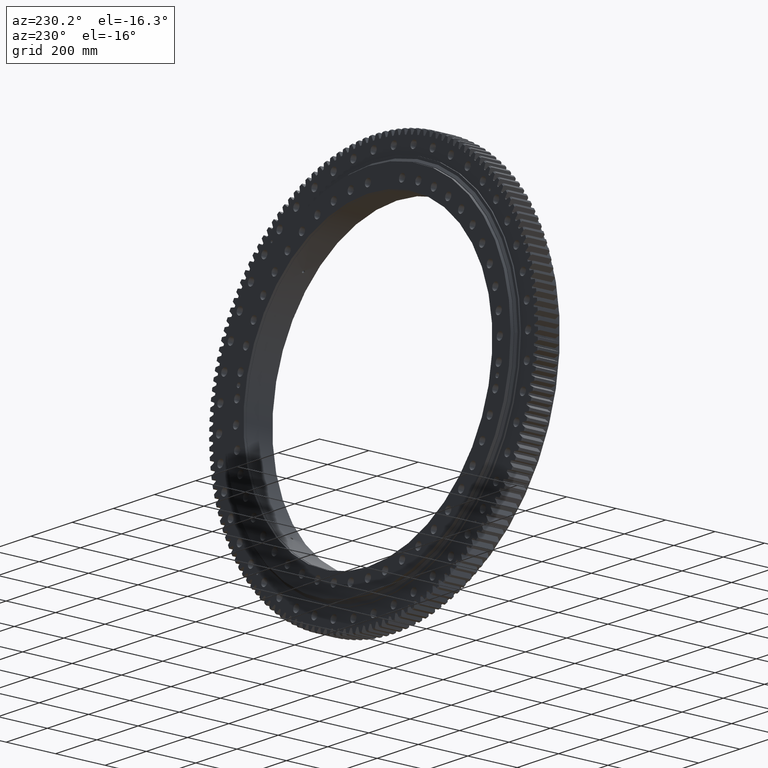
[diagram: clean part render]
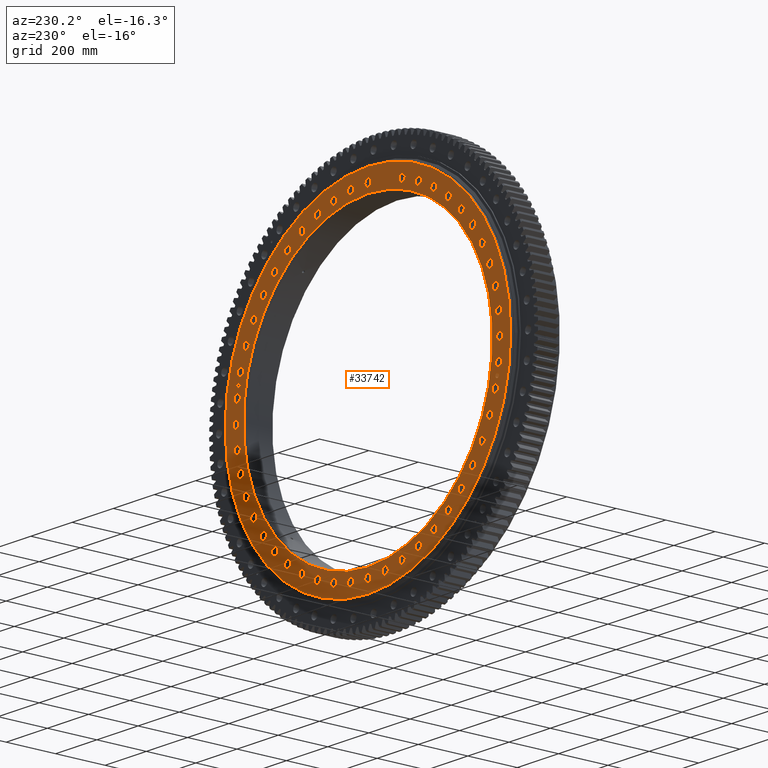
[diagram: same view with one face highlighted and labeled with its STEP entity id]
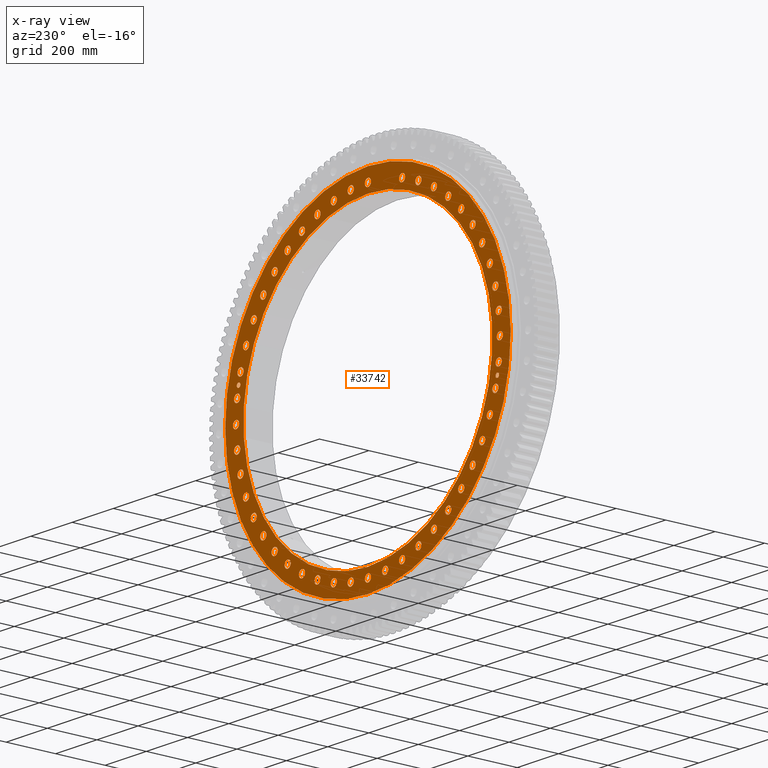
[diagram: x-ray of the same camera — body ghosted, the highlighted face saturated]
A machine part, auxiliary view. The second image highlights one B-rep face of the part: STEP entity #33742.
The next image is the same camera in x-ray: the body ghosted, the highlighted face saturated — about 0% of this face is hidden behind the body in this view.
In plain terms, the highlighted planar face has unit normal (0, -1, 0).
Its self-contained STEP definition (entity closure, byte-faithful):
#36 = CARTESIAN_POINT ( 'NONE',  ( 634.5247112792383200, 70.49999999999995700, -68.53676302083603400 ) ) ;
#110 = EDGE_CURVE ( 'NONE', #40349, #38570, #5817, .T. ) ;
#131 = DIRECTION ( 'NONE',  ( 3.081487911019577400E-033, 1.000000000000000000, -2.727064569436389100E-017 ) ) ;
#138 = DIRECTION ( 'NONE',  ( -3.081487911019577400E-033, 1.000000000000000000, -2.727064569436389400E-017 ) ) ;
#183 = EDGE_CURVE ( 'NONE', #33458, #32988, #3696, .T. ) ;
#195 = DIRECTION ( 'NONE',  ( 0.0000000000000000000, 1.000000000000000000, -2.727064569436389400E-017 ) ) ;
#262 = CARTESIAN_POINT ( 'NONE',  ( 244.9173967136535700, 70.49999999999994300, -576.2829008072251300 ) ) ;
#268 = CARTESIAN_POINT ( 'NONE',  ( -244.9173967136494800, 70.49999999999997200, 591.2829008072269500 ) ) ;
#274 = CARTESIAN_POINT ( 'NONE',  ( 319.9999999999965900, 70.49999999999994300, -554.2562584220428300 ) ) ;
#323 = CARTESIAN_POINT ( 'NONE',  ( -640.0000000000000000, 70.49999999999995700, 7.006136042623372100E-012 ) ) ;
#339 = FACE_BOUND ( 'NONE', #1605, .T. ) ;
#351 = CARTESIAN_POINT ( 'NONE',  ( 554.2562584220390800, 70.49999999999994300, -320.0000000000028400 ) ) ;
#367 = DIRECTION ( 'NONE',  ( -0.7933533402912365000, 0.0000000000000000000, 0.6087614290087188800 ) ) ;
#385 = CARTESIAN_POINT ( 'NONE',  ( -554.2562584220440800, 70.49999999999994300, -304.9999999999946600 ) ) ;
#404 = DIRECTION ( 'NONE',  ( 0.7071067811865382500, 0.0000000000000000000, 0.7071067811865567900 ) ) ;
#409 = EDGE_CURVE ( 'NONE', #16078, #30716, #39120, .T. ) ;
#439 = ORIENTED_EDGE ( 'NONE', *, *, #20519, .F. ) ;
#553 = ORIENTED_EDGE ( 'NONE', *, *, #26227, .F. ) ;
#580 = EDGE_LOOP ( 'NONE', ( #33422, #4897 ) ) ;
#623 = DIRECTION ( 'NONE',  ( -0.7071067811865438000, 0.0000000000000000000, -0.7071067811865512400 ) ) ;
#748 = CARTESIAN_POINT ( 'NONE',  ( -244.9173967136494800, 70.49999999999997200, 576.2829008072269500 ) ) ;
#773 = VERTEX_POINT ( 'NONE', #41748 ) ;
#873 = ORIENTED_EDGE ( 'NONE', *, *, #43385, .F. ) ;
#988 = VERTEX_POINT ( 'NONE', #22763 ) ;
#1011 = EDGE_LOOP ( 'NONE', ( #29457, #16601 ) ) ;
#1057 = CIRCLE ( 'NONE', #3523, 14.99999999999998000 ) ;
#1071 = VERTEX_POINT ( 'NONE', #12247 ) ;
#1124 = CIRCLE ( 'NONE', #26455, 14.99999999999992200 ) ;
#1163 = EDGE_LOOP ( 'NONE', ( #29541, #26138 ) ) ;
#1171 = ORIENTED_EDGE ( 'NONE', *, *, #25932, .F. ) ;
#1172 = DIRECTION ( 'NONE',  ( -0.9659258262890688700, 0.0000000000000000000, 0.2588190451025184100 ) ) ;
#1187 = ORIENTED_EDGE ( 'NONE', *, *, #18019, .F. ) ;
#1206 = VERTEX_POINT ( 'NONE', #35194 ) ;
#1293 = AXIS2_PLACEMENT_3D ( 'NONE', #35100, #14853, #38511 ) ;
#1324 = CARTESIAN_POINT ( 'NONE',  ( 634.5247112792383200, 70.49999999999995700, -98.53676302083597700 ) ) ;
#1383 = CARTESIAN_POINT ( 'NONE',  ( -389.6073145655857400, 70.49999999999994300, -507.7461377863870100 ) ) ;
#1388 = FACE_BOUND ( 'NONE', #20213, .T. ) ;
#1434 = CIRCLE ( 'NONE', #34693, 14.99999999999999500 ) ;
#1449 = ORIENTED_EDGE ( 'NONE', *, *, #9391, .F. ) ;
#1453 = DIRECTION ( 'NONE',  ( 0.7933533402912410500, 0.0000000000000000000, -0.6087614290087130000 ) ) ;
#1505 = ORIENTED_EDGE ( 'NONE', *, *, #4946, .F. ) ;
#1538 = DIRECTION ( 'NONE',  ( 0.9659258262890713100, 0.0000000000000000000, -0.2588190451025096400 ) ) ;
#1605 = EDGE_LOOP ( 'NONE', ( #4790, #1505 ) ) ;
#1622 = AXIS2_PLACEMENT_3D ( 'NONE', #36055, #15775, #39439 ) ;
#1667 = CARTESIAN_POINT ( 'NONE',  ( -627.7025794580689500, 70.49999999999995700, -133.6078060903155300 ) ) ;
#1678 = CARTESIAN_POINT ( 'NONE',  ( -507.7461377863942300, 70.49999999999994300, -389.6073145655764200 ) ) ;
#1683 = DIRECTION ( 'NONE',  ( -6.162975822039154700E-033, 1.000000000000000000, -2.727064569436389700E-017 ) ) ;
#1752 = DIRECTION ( 'NONE',  ( -1.540743955509788700E-033, 1.000000000000000000, -2.727064569436389100E-017 ) ) ;
#1902 = CIRCLE ( 'NONE', #22364, 14.99999999999995200 ) ;
#1915 = CARTESIAN_POINT ( 'NONE',  ( -244.9173967136623800, 70.49999999999994300, -591.2829008072214900 ) ) ;
#2011 = EDGE_CURVE ( 'NONE', #29354, #27025, #13636, .T. ) ;
#2015 = EDGE_CURVE ( 'NONE', #9268, #1206, #22653, .T. ) ;
#2064 = ORIENTED_EDGE ( 'NONE', *, *, #34934, .F. ) ;
#2149 = ORIENTED_EDGE ( 'NONE', *, *, #10403, .F. ) ;
#2197 = DIRECTION ( 'NONE',  ( 0.3826834323650970000, 0.0000000000000000000, -0.9238795325112837400 ) ) ;
#2238 = CARTESIAN_POINT ( 'NONE',  ( 640.0000000000000000, 70.49999999999995700, -15.00000000000250600 ) ) ;
#2285 = VERTEX_POINT ( 'NONE', #31009 ) ;
#2449 = CIRCLE ( 'NONE', #38667, 14.99999999999996300 ) ;
#2452 = FACE_BOUND ( 'NONE', #22943, .T. ) ;
#2502 = CIRCLE ( 'NONE', #9293, 14.99999999999993800 ) ;
#2509 = CARTESIAN_POINT ( 'NONE',  ( -4.773510566285219100E-012, 70.49999999999992900, -640.0000000000000000 ) ) ;
#2528 = DIRECTION ( 'NONE',  ( 3.081487911019577400E-033, 1.000000000000000000, -2.727064569436389100E-017 ) ) ;
#2553 = AXIS2_PLACEMENT_3D ( 'NONE', #41110, #20838, #623 ) ;
#2637 = CIRCLE ( 'NONE', #23252, 8.750000000000035500 ) ;
#2651 = EDGE_LOOP ( 'NONE', ( #5959, #10439 ) ) ;
#2694 = CARTESIAN_POINT ( 'NONE',  ( -591.2829008072205900, 70.49999999999995700, 229.9173967136644900 ) ) ;
#2844 = EDGE_CURVE ( 'NONE', #17909, #37062, #32087, .T. ) ;
#2850 = DIRECTION ( 'NONE',  ( 3.081487911019577400E-033, 1.000000000000000000, -2.727064569436389700E-017 ) ) ;
#3042 = VERTEX_POINT ( 'NONE', #13893 ) ;
#3141 = CARTESIAN_POINT ( 'NONE',  ( 83.53676302082846000, 70.49999999999992900, -634.5247112792392300 ) ) ;
#3149 = VERTEX_POINT ( 'NONE', #41444 ) ;
#3207 = CARTESIAN_POINT ( 'NONE',  ( -165.6441888656047200, 70.49999999999997200, 633.1925288250060900 ) ) ;
#3211 = EDGE_CURVE ( 'NONE', #27135, #16618, #36323, .T. ) ;
#3275 = EDGE_CURVE ( 'NONE', #6064, #4177, #33132, .T. ) ;
#3291 = DIRECTION ( 'NONE',  ( 0.0000000000000000000, 1.000000000000000000, -2.727064569436389700E-017 ) ) ;
#3312 = CIRCLE ( 'NONE', #20731, 14.99999999999994700 ) ;
#3319 = VERTEX_POINT ( 'NONE', #42601 ) ;
#3321 = AXIS2_PLACEMENT_3D ( 'NONE', #22800, #2528, #26193 ) ;
#3411 = CARTESIAN_POINT ( 'NONE',  ( 244.9173967136535700, 70.49999999999994300, -606.2829008072251300 ) ) ;
#3424 = ORIENTED_EDGE ( 'NONE', *, *, #29688, .F. ) ;
#3433 = CIRCLE ( 'NONE', #38139, 14.99999999999996100 ) ;
#3489 = ORIENTED_EDGE ( 'NONE', *, *, #22235, .F. ) ;
#3512 = AXIS2_PLACEMENT_3D ( 'NONE', #3772, #27391, #7117 ) ;
#3523 = AXIS2_PLACEMENT_3D ( 'NONE', #10914, #34597, #14337 ) ;
#3531 = FACE_BOUND ( 'NONE', #12269, .T. ) ;
#3540 = DIRECTION ( 'NONE',  ( 9.244463733058732100E-033, 1.000000000000000000, -2.727064569436388400E-017 ) ) ;
#3547 = ORIENTED_EDGE ( 'NONE', *, *, #15492, .F. ) ;
#3584 = CARTESIAN_POINT ( 'NONE',  ( -389.6073145655746000, 70.49999999999997200, 492.7461377863957100 ) ) ;
#3673 = DIRECTION ( 'NONE',  ( -0.3826834323650922200, 0.0000000000000000000, 0.9238795325112857400 ) ) ;
#3686 = DIRECTION ( 'NONE',  ( 0.5000000000000045500, 0.0000000000000000000, -0.8660254037844359300 ) ) ;
#3696 = CIRCLE ( 'NONE', #29284, 15.00000000000001600 ) ;
#3742 = EDGE_CURVE ( 'NONE', #20350, #35001, #15079, .T. ) ;
#3749 = DIRECTION ( 'NONE',  ( -1.000000000000000000, 0.0000000000000000000, -3.491481338843108900E-015 ) ) ;
#3764 = DIRECTION ( 'NONE',  ( 0.8660254037844442600, 0.0000000000000000000, -0.4999999999999901700 ) ) ;
#3772 = CARTESIAN_POINT ( 'NONE',  ( 640.0000000000000000, 70.49999999999995700, -2.540885089947066100E-012 ) ) ;
#3798 = DIRECTION ( 'NONE',  ( 0.0000000000000000000, -1.000000000000000000, 2.727064569436389700E-017 ) ) ;
#3807 = DIRECTION ( 'NONE',  ( -6.162975822039154700E-033, 1.000000000000000000, -2.727064569436389700E-017 ) ) ;
#3847 = VERTEX_POINT ( 'NONE', #42243 ) ;
#4080 = DIRECTION ( 'NONE',  ( -3.081487911019577400E-033, 1.000000000000000000, -2.727064569436389700E-017 ) ) ;
#4168 = CARTESIAN_POINT ( 'NONE',  ( -618.1925288250017700, 70.49999999999995700, 150.6441888656204600 ) ) ;
#4170 = EDGE_CURVE ( 'NONE', #41923, #18484, #8143, .T. ) ;
#4177 = VERTEX_POINT ( 'NONE', #13800 ) ;
#4318 = CARTESIAN_POINT ( 'NONE',  ( -554.2562584220368100, 70.49999999999995700, 320.0000000000067100 ) ) ;
#4326 = CIRCLE ( 'NONE', #25862, 14.99999999999994800 ) ;
#4343 = EDGE_CURVE ( 'NONE', #20160, #7527, #30889, .T. ) ;
#4368 = AXIS2_PLACEMENT_3D ( 'NONE', #8860, #32541, #12288 ) ;
#4463 = CARTESIAN_POINT ( 'NONE',  ( 83.53676302083377400, 70.49999999999997200, 619.5247112792385500 ) ) ;
#4526 = DIRECTION ( 'NONE',  ( 0.0000000000000000000, 1.000000000000000000, -2.727064569436390300E-017 ) ) ;
#4568 = FACE_BOUND ( 'NONE', #20032, .T. ) ;
#4742 = EDGE_CURVE ( 'NONE', #24218, #23047, #35120, .T. ) ;
#4752 = VERTEX_POINT ( 'NONE', #385 ) ;
#4778 = AXIS2_PLACEMENT_3D ( 'NONE', #20329, #131, #23764 ) ;
#4790 = ORIENTED_EDGE ( 'NONE', *, *, #3275, .F. ) ;
#4797 = DIRECTION ( 'NONE',  ( -0.6087614290087153300, 0.0000000000000000000, -0.7933533402912392700 ) ) ;
#4871 = CIRCLE ( 'NONE', #26702, 14.99999999999994100 ) ;
#4892 = DIRECTION ( 'NONE',  ( -3.081487911019577400E-033, 1.000000000000000000, -2.727064569436389700E-017 ) ) ;
#4897 = ORIENTED_EDGE ( 'NONE', *, *, #35280, .F. ) ;
#4946 = EDGE_CURVE ( 'NONE', #4177, #6064, #28767, .T. ) ;
#4968 = EDGE_LOOP ( 'NONE', ( #17491, #1171 ) ) ;
#5034 = VERTEX_POINT ( 'NONE', #8735 ) ;
#5042 = DIRECTION ( 'NONE',  ( -0.7933533402912329400, 0.0000000000000000000, -0.6087614290087235400 ) ) ;
#5137 = DIRECTION ( 'NONE',  ( 0.5000000000000045500, 0.0000000000000000000, -0.8660254037844359300 ) ) ;
#5333 = DIRECTION ( 'NONE',  ( -0.3826834323650849500, 0.0000000000000000000, -0.9238795325112887400 ) ) ;
#5341 = AXIS2_PLACEMENT_3D ( 'NONE', #1383, #25055, #4797 ) ;
#5409 = CARTESIAN_POINT ( 'NONE',  ( 0.0000000000000000000, 70.49999999999995700, 0.0000000000000000000 ) ) ;
#5415 = EDGE_CURVE ( 'NONE', #37566, #14269, #29794, .T. ) ;
#5416 = CARTESIAN_POINT ( 'NONE',  ( 165.6441888656139600, 70.49999999999997200, 618.1925288250034800 ) ) ;
#5540 = CIRCLE ( 'NONE', #33022, 14.99999999999999500 ) ;
#5545 = ORIENTED_EDGE ( 'NONE', *, *, #30277, .F. ) ;
#5597 = CARTESIAN_POINT ( 'NONE',  ( 389.6073145655781800, 70.49999999999994300, -522.7461377863928600 ) ) ;
#5616 = CARTESIAN_POINT ( 'NONE',  ( -320.0000000000047700, 70.49999999999994300, -554.2562584220379400 ) ) ;
#5623 = FACE_BOUND ( 'NONE', #28008, .T. ) ;
#5645 = ORIENTED_EDGE ( 'NONE', *, *, #26330, .F. ) ;
#5713 = EDGE_LOOP ( 'NONE', ( #31682, #16910 ) ) ;
#5756 = CIRCLE ( 'NONE', #38848, 14.99999999999998900 ) ;
#5817 = CIRCLE ( 'NONE', #15658, 14.99999999999994500 ) ;
#5909 = DIRECTION ( 'NONE',  ( 6.982962677686217800E-015, 0.0000000000000000000, -1.000000000000000000 ) ) ;
#5959 = ORIENTED_EDGE ( 'NONE', *, *, #38693, .F. ) ;
#5960 = CARTESIAN_POINT ( 'NONE',  ( -452.5483399593945800, 70.49999999999994300, -437.5483399593862800 ) ) ;
#5986 = CARTESIAN_POINT ( 'NONE',  ( 9.242606680004429800E-012, 70.49999999999997200, 655.0000000000000000 ) ) ;
#6008 = DIRECTION ( 'NONE',  ( -3.081487911019577400E-033, 1.000000000000000000, -2.727064569436389100E-017 ) ) ;
#6064 = VERTEX_POINT ( 'NONE', #35510 ) ;
#6071 = CARTESIAN_POINT ( 'NONE',  ( -591.2829008072261600, 70.49999999999994300, -244.9173967136515300 ) ) ;
#6088 = CIRCLE ( 'NONE', #20206, 14.99999999999998000 ) ;
#6113 = ORIENTED_EDGE ( 'NONE', *, *, #27038, .F. ) ;
#6119 = CARTESIAN_POINT ( 'NONE',  ( -165.6441888656047200, 70.49999999999997200, 618.1925288250060900 ) ) ;
#6223 = EDGE_CURVE ( 'NONE', #43086, #5034, #7721, .T. ) ;
#6239 = ORIENTED_EDGE ( 'NONE', *, *, #28648, .F. ) ;
#6344 = VERTEX_POINT ( 'NONE', #36 ) ;
#6475 = DIRECTION ( 'NONE',  ( -3.081487911019577400E-033, 1.000000000000000000, -2.727064569436389100E-017 ) ) ;
#6530 = DIRECTION ( 'NONE',  ( 0.1305261922200590700, 0.0000000000000000000, -0.9914448613738093800 ) ) ;
#6579 = CARTESIAN_POINT ( 'NONE',  ( -627.7025794580689500, 70.49999999999995700, -124.8578060903154900 ) ) ;
#6591 = CARTESIAN_POINT ( 'NONE',  ( 165.6441888656139600, 70.49999999999997200, 618.1925288250034800 ) ) ;
#6595 = CIRCLE ( 'NONE', #23916, 14.99999999999999300 ) ;
#6685 = FACE_BOUND ( 'NONE', #24413, .T. ) ;
#6724 = CARTESIAN_POINT ( 'NONE',  ( -389.6073145655746000, 70.49999999999997200, 522.7461377863957100 ) ) ;
#6781 = EDGE_CURVE ( 'NONE', #10456, #13025, #30455, .T. ) ;
#7024 = AXIS2_PLACEMENT_3D ( 'NONE', #40217, #19908, #43611 ) ;
#7053 = AXIS2_PLACEMENT_3D ( 'NONE', #37845, #17592, #41282 ) ;
#7076 = CARTESIAN_POINT ( 'NONE',  ( 389.6073145655781800, 70.49999999999994300, -507.7461377863928600 ) ) ;
#7110 = EDGE_CURVE ( 'NONE', #37062, #17909, #19400, .T. ) ;
#7117 = DIRECTION ( 'NONE',  ( 1.000000000000000000, 0.0000000000000000000, 1.047444401652935400E-014 ) ) ;
#7219 = AXIS2_PLACEMENT_3D ( 'NONE', #26982, #27162, #23775 ) ;
#7229 = ORIENTED_EDGE ( 'NONE', *, *, #4343, .F. ) ;
#7241 = CIRCLE ( 'NONE', #34318, 14.99999999999997500 ) ;
#7387 = VERTEX_POINT ( 'NONE', #20774 ) ;
#7395 = VERTEX_POINT ( 'NONE', #30815 ) ;
#7509 = EDGE_CURVE ( 'NONE', #9060, #27180, #14577, .T. ) ;
#7527 = VERTEX_POINT ( 'NONE', #8034 ) ;
#7650 = DIRECTION ( 'NONE',  ( -0.8660254037844392600, 0.0000000000000000000, 0.4999999999999990000 ) ) ;
#7699 = AXIS2_PLACEMENT_3D ( 'NONE', #6071, #29741, #9479 ) ;
#7705 = FACE_BOUND ( 'NONE', #26945, .T. ) ;
#7721 = CIRCLE ( 'NONE', #7699, 14.99999999999994700 ) ;
#7826 = CARTESIAN_POINT ( 'NONE',  ( 591.2829008072224000, 70.49999999999994300, -244.9173967136600800 ) ) ;
#7871 = AXIS2_PLACEMENT_3D ( 'NONE', #14460, #38159, #17879 ) ;
#7972 = CARTESIAN_POINT ( 'NONE',  ( -627.7025794580689500, 70.49999999999995700, -124.8578060903154900 ) ) ;
#7979 = CIRCLE ( 'NONE', #39460, 15.00000000000001400 ) ;
#8027 = EDGE_CURVE ( 'NONE', #13025, #10456, #38882, .T. ) ;
#8034 = CARTESIAN_POINT ( 'NONE',  ( -244.9173967136623800, 70.49999999999994300, -606.2829008072214900 ) ) ;
#8118 = AXIS2_PLACEMENT_3D ( 'NONE', #8296, #31966, #11733 ) ;
#8143 = CIRCLE ( 'NONE', #40185, 14.99999999999992500 ) ;
#8209 = FACE_BOUND ( 'NONE', #40965, .T. ) ;
#8211 = CARTESIAN_POINT ( 'NONE',  ( 452.5483399593878200, 70.49999999999994300, -437.5483399593930500 ) ) ;
#8296 = CARTESIAN_POINT ( 'NONE',  ( 320.0000000000009100, 70.49999999999997200, 554.2562584220402200 ) ) ;
#8353 = CIRCLE ( 'NONE', #20271, 15.00000000000000000 ) ;
#8411 = EDGE_CURVE ( 'NONE', #18915, #8803, #3433, .T. ) ;
#8417 = ORIENTED_EDGE ( 'NONE', *, *, #26089, .F. ) ;
#8528 = CIRCLE ( 'NONE', #3512, 15.00000000000001400 ) ;
#8545 = CARTESIAN_POINT ( 'NONE',  ( -591.2829008072261600, 70.49999999999994300, -259.9173967136515000 ) ) ;
#8671 = CARTESIAN_POINT ( 'NONE',  ( -319.9999999999926700, 70.49999999999997200, 554.2562584220451100 ) ) ;
#8725 = CARTESIAN_POINT ( 'NONE',  ( -634.5247112792395700, 70.49999999999995700, -83.53676302082627100 ) ) ;
#8735 = CARTESIAN_POINT ( 'NONE',  ( -591.2829008072261600, 70.49999999999994300, -229.9173967136515800 ) ) ;
#8757 = DIRECTION ( 'NONE',  ( 0.0000000000000000000, -2.297646988048751100E-017, -1.000000000000000000 ) ) ;
#8763 = DIRECTION ( 'NONE',  ( 0.2588190451025079200, 0.0000000000000000000, 0.9659258262890717500 ) ) ;
#8803 = VERTEX_POINT ( 'NONE', #31553 ) ;
#8820 = CARTESIAN_POINT ( 'NONE',  ( -618.1925288250056400, 70.49999999999994300, -165.6441888656068800 ) ) ;
#8860 = CARTESIAN_POINT ( 'NONE',  ( -591.2829008072205900, 70.49999999999995700, 244.9173967136644300 ) ) ;
#8946 = ORIENTED_EDGE ( 'NONE', *, *, #8411, .F. ) ;
#8949 = EDGE_CURVE ( 'NONE', #23047, #24218, #38293, .T. ) ;
#8993 = DIRECTION ( 'NONE',  ( 0.6087614290087294300, 0.0000000000000000000, -0.7933533402912283900 ) ) ;
#9023 = ORIENTED_EDGE ( 'NONE', *, *, #110, .F. ) ;
#9029 = DIRECTION ( 'NONE',  ( -0.4999999999999929500, 0.0000000000000000000, -0.8660254037844427000 ) ) ;
#9056 = DIRECTION ( 'NONE',  ( 3.081487911019577400E-033, 1.000000000000000000, -2.727064569436389400E-017 ) ) ;
#9060 = VERTEX_POINT ( 'NONE', #22704 ) ;
#9154 = CIRCLE ( 'NONE', #24678, 14.99999999999996400 ) ;
#9198 = CIRCLE ( 'NONE', #31315, 15.00000000000000200 ) ;
#9263 = CARTESIAN_POINT ( 'NONE',  ( -165.6441888656047200, 70.49999999999997200, 618.1925288250060900 ) ) ;
#9268 = VERTEX_POINT ( 'NONE', #10528 ) ;
#9293 = AXIS2_PLACEMENT_3D ( 'NONE', #26732, #6475, #22211 ) ;
#9315 = FACE_BOUND ( 'NONE', #4968, .T. ) ;
#9341 = ORIENTED_EDGE ( 'NONE', *, *, #31371, .F. ) ;
#9355 = CARTESIAN_POINT ( 'NONE',  ( -83.53676302083793800, 70.49999999999992900, -634.5247112792380900 ) ) ;
#9386 = EDGE_CURVE ( 'NONE', #19349, #22091, #43587, .T. ) ;
#9391 = EDGE_CURVE ( 'NONE', #42020, #6344, #33509, .T. ) ;
#9479 = DIRECTION ( 'NONE',  ( -0.9238795325112844100, 0.0000000000000000000, -0.3826834323650953900 ) ) ;
#9485 = CARTESIAN_POINT ( 'NONE',  ( -320.0000000000047700, 70.49999999999994300, -569.2562584220379400 ) ) ;
#9542 = DIRECTION ( 'NONE',  ( -0.2588190451025218500, 0.0000000000000000000, 0.9659258262890679800 ) ) ;
#9560 = CIRCLE ( 'NONE', #5341, 15.00000000000001400 ) ;
#9727 = EDGE_CURVE ( 'NONE', #16339, #36087, #22908, .T. ) ;
#9737 = CARTESIAN_POINT ( 'NONE',  ( 554.2562584220417000, 70.49999999999995700, 319.9999999999984700 ) ) ;
#9769 = AXIS2_PLACEMENT_3D ( 'NONE', #35461, #38859, #15183 ) ;
#9833 = CARTESIAN_POINT ( 'NONE',  ( 83.53676302083377400, 70.49999999999997200, 634.5247112792385500 ) ) ;
#9927 = VERTEX_POINT ( 'NONE', #28554 ) ;
#9930 = VERTEX_POINT ( 'NONE', #28695 ) ;
#9970 = DIRECTION ( 'NONE',  ( 0.0000000000000000000, 0.0000000000000000000, 1.000000000000000000 ) ) ;
#9998 = DIRECTION ( 'NONE',  ( 0.2588190451025079200, 0.0000000000000000000, 0.9659258262890717500 ) ) ;
#10136 = CARTESIAN_POINT ( 'NONE',  ( 9.242606680004429800E-012, 70.49999999999997200, 640.0000000000000000 ) ) ;
#10179 = CARTESIAN_POINT ( 'NONE',  ( 507.7461377863914400, 70.49999999999997200, 404.6073145655801700 ) ) ;
#10197 = VERTEX_POINT ( 'NONE', #3411 ) ;
#10209 = CIRCLE ( 'NONE', #1622, 14.99999999999995700 ) ;
#10360 = FACE_BOUND ( 'NONE', #35220, .T. ) ;
#10403 = EDGE_CURVE ( 'NONE', #28480, #21453, #19684, .T. ) ;
#10426 = VERTEX_POINT ( 'NONE', #12231 ) ;
#10437 = CIRCLE ( 'NONE', #28613, 14.99999999999992200 ) ;
#10439 = ORIENTED_EDGE ( 'NONE', *, *, #43439, .F. ) ;
#10443 = AXIS2_PLACEMENT_3D ( 'NONE', #274, #23943, #3686 ) ;
#10456 = VERTEX_POINT ( 'NONE', #25856 ) ;
#10486 = DIRECTION ( 'NONE',  ( 1.540743955509788700E-033, 1.000000000000000000, -2.727064569436389100E-017 ) ) ;
#10528 = CARTESIAN_POINT ( 'NONE',  ( 319.9999999999965900, 70.49999999999994300, -539.2562584220428300 ) ) ;
#10634 = EDGE_LOOP ( 'NONE', ( #41096, #15073 ) ) ;
#10701 = ORIENTED_EDGE ( 'NONE', *, *, #26184, .F. ) ;
#10775 = EDGE_CURVE ( 'NONE', #17013, #10426, #11170, .T. ) ;
#10804 = EDGE_CURVE ( 'NONE', #28557, #12516, #26017, .T. ) ;
#10807 = DIRECTION ( 'NONE',  ( 0.0000000000000000000, 1.000000000000000000, -2.727064569436390300E-017 ) ) ;
#10914 = CARTESIAN_POINT ( 'NONE',  ( 507.7461377863882000, 70.49999999999994300, -389.6073145655842000 ) ) ;
#10916 = ORIENTED_EDGE ( 'NONE', *, *, #29761, .F. ) ;
#11011 = CARTESIAN_POINT ( 'NONE',  ( -507.7461377863942300, 70.49999999999994300, -404.6073145655763600 ) ) ;
#11158 = VERTEX_POINT ( 'NONE', #12182 ) ;
#11168 = CARTESIAN_POINT ( 'NONE',  ( -634.5247112792395700, 70.49999999999995700, -98.53676302082622800 ) ) ;
#11170 = CIRCLE ( 'NONE', #4778, 14.99999999999993200 ) ;
#11260 = DIRECTION ( 'NONE',  ( 0.9238795325112907400, 0.0000000000000000000, -0.3826834323650801800 ) ) ;
#11265 = CARTESIAN_POINT ( 'NONE',  ( -4.773510566285219100E-012, 70.49999999999992900, -640.0000000000000000 ) ) ;
#11290 = DIRECTION ( 'NONE',  ( 3.081487911019577400E-033, 1.000000000000000000, -2.727064569436389100E-017 ) ) ;
#11323 = AXIS2_PLACEMENT_3D ( 'NONE', #6119, #29793, #9542 ) ;
#11352 = ORIENTED_EDGE ( 'NONE', *, *, #21837, .F. ) ;
#11356 = CIRCLE ( 'NONE', #7053, 14.99999999999994100 ) ;
#11366 = DIRECTION ( 'NONE',  ( 0.0000000000000000000, 0.0000000000000000000, 1.000000000000000000 ) ) ;
#11402 = CARTESIAN_POINT ( 'NONE',  ( 627.7025794580696400, 70.49999999999995700, 133.6078060903128100 ) ) ;
#11417 = FACE_BOUND ( 'NONE', #37479, .T. ) ;
#11500 = CIRCLE ( 'NONE', #25078, 14.99999999999997200 ) ;
#11595 = ORIENTED_EDGE ( 'NONE', *, *, #24027, .F. ) ;
#11630 = CARTESIAN_POINT ( 'NONE',  ( 389.6073145655824400, 70.49999999999997200, 522.7461377863895700 ) ) ;
#11631 = DIRECTION ( 'NONE',  ( -3.081487911019577400E-033, 1.000000000000000000, -2.727064569436389400E-017 ) ) ;
#11701 = DIRECTION ( 'NONE',  ( 3.081487911019577400E-033, 1.000000000000000000, -2.727064569436389700E-017 ) ) ;
#11733 = DIRECTION ( 'NONE',  ( 0.4999999999999901700, 0.0000000000000000000, 0.8660254037844442600 ) ) ;
#11782 = ORIENTED_EDGE ( 'NONE', *, *, #42261, .F. ) ;
#11934 = DIRECTION ( 'NONE',  ( -1.540743955509788700E-033, 1.000000000000000000, -2.727064569436389700E-017 ) ) ;
#12023 = AXIS2_PLACEMENT_3D ( 'NONE', #21970, #1752, #5137 ) ;
#12034 = CARTESIAN_POINT ( 'NONE',  ( 554.2562584220417000, 70.49999999999995700, 319.9999999999984700 ) ) ;
#12088 = DIRECTION ( 'NONE',  ( -0.5000000000000017800, 0.0000000000000000000, 0.8660254037844376000 ) ) ;
#12151 = AXIS2_PLACEMENT_3D ( 'NONE', #17604, #41297, #20985 ) ;
#12173 = EDGE_CURVE ( 'NONE', #21062, #3847, #2637, .T. ) ;
#12182 = CARTESIAN_POINT ( 'NONE',  ( 452.5483399593914600, 70.49999999999997200, 437.5483399593894100 ) ) ;
#12231 = CARTESIAN_POINT ( 'NONE',  ( -634.5247112792377500, 70.49999999999995700, 98.53676302084011200 ) ) ;
#12236 = AXIS2_PLACEMENT_3D ( 'NONE', #1678, #25329, #5042 ) ;
#12247 = CARTESIAN_POINT ( 'NONE',  ( -618.1925288250056400, 70.49999999999994300, -150.6441888656069400 ) ) ;
#12261 = DIRECTION ( 'NONE',  ( -0.9659258262890670900, 0.0000000000000000000, -0.2588190451025252900 ) ) ;
#12269 = EDGE_LOOP ( 'NONE', ( #14148, #11782 ) ) ;
#12288 = DIRECTION ( 'NONE',  ( -0.9238795325112887400, 0.0000000000000000000, 0.3826834323650849500 ) ) ;
#12342 = CARTESIAN_POINT ( 'NONE',  ( 7.396866666850013000E-014, 70.49999999999994300, -604.0000000000000000 ) ) ;
#12451 = CIRCLE ( 'NONE', #14682, 14.99999999999992000 ) ;
#12480 = DIRECTION ( 'NONE',  ( -3.081487911019577400E-033, 1.000000000000000000, -2.727064569436389100E-017 ) ) ;
#12494 = FACE_BOUND ( 'NONE', #39839, .T. ) ;
#12512 = CARTESIAN_POINT ( 'NONE',  ( 0.0000000000000000000, 70.49999999999995700, -2.768764285032564600E-015 ) ) ;
#12516 = VERTEX_POINT ( 'NONE', #10179 ) ;
#12543 = EDGE_CURVE ( 'NONE', #26039, #4752, #5756, .T. ) ;
#12565 = VERTEX_POINT ( 'NONE', #27310 ) ;
#12604 = CIRCLE ( 'NONE', #42646, 14.99999999999992000 ) ;
#12676 = DIRECTION ( 'NONE',  ( -0.2588190451025218500, 0.0000000000000000000, 0.9659258262890679800 ) ) ;
#12744 = AXIS2_PLACEMENT_3D ( 'NONE', #34558, #14294, #37949 ) ;
#12771 = DIRECTION ( 'NONE',  ( -0.1305261922200454400, 0.0000000000000000000, -0.9914448613738112700 ) ) ;
#12835 = EDGE_CURVE ( 'NONE', #27025, #29354, #22106, .T. ) ;
#12841 = EDGE_CURVE ( 'NONE', #28997, #9927, #23210, .T. ) ;
#12860 = CIRCLE ( 'NONE', #28797, 15.00000000000001400 ) ;
#12874 = AXIS2_PLACEMENT_3D ( 'NONE', #16811, #40495, #20227 ) ;
#12881 = AXIS2_PLACEMENT_3D ( 'NONE', #33637, #13387, #37076 ) ;
#12966 = DIRECTION ( 'NONE',  ( 3.081487911019577400E-033, 1.000000000000000000, -2.727064569436389400E-017 ) ) ;
#13025 = VERTEX_POINT ( 'NONE', #13681 ) ;
#13139 = DIRECTION ( 'NONE',  ( 0.8660254037844326000, 0.0000000000000000000, 0.5000000000000104400 ) ) ;
#13267 = DIRECTION ( 'NONE',  ( 0.1305261922200390600, 0.0000000000000000000, 0.9914448613738120500 ) ) ;
#13269 = ORIENTED_EDGE ( 'NONE', *, *, #6223, .F. ) ;
#13313 = ORIENTED_EDGE ( 'NONE', *, *, #31354, .F. ) ;
#13387 = DIRECTION ( 'NONE',  ( 9.244463733058732100E-033, 1.000000000000000000, -2.727064569436388400E-017 ) ) ;
#13465 = EDGE_LOOP ( 'NONE', ( #6239, #13269 ) ) ;
#13513 = DIRECTION ( 'NONE',  ( 0.0000000000000000000, 0.0000000000000000000, 1.000000000000000000 ) ) ;
#13525 = DIRECTION ( 'NONE',  ( 3.081487911019577400E-033, 1.000000000000000000, -2.727064569436389100E-017 ) ) ;
#13547 = FACE_BOUND ( 'NONE', #580, .T. ) ;
#13636 = CIRCLE ( 'NONE', #9769, 14.99999999999995900 ) ;
#13667 = EDGE_LOOP ( 'NONE', ( #32217, #9023 ) ) ;
#13681 = CARTESIAN_POINT ( 'NONE',  ( -452.5483399593846900, 70.49999999999997200, 467.5483399593962300 ) ) ;
#13744 = VERTEX_POINT ( 'NONE', #41739 ) ;
#13800 = CARTESIAN_POINT ( 'NONE',  ( 320.0000000000009100, 70.49999999999997200, 539.2562584220402200 ) ) ;
#13810 = DIRECTION ( 'NONE',  ( 0.0000000000000000000, 1.000000000000000000, -2.727064569436389700E-017 ) ) ;
#13893 = CARTESIAN_POINT ( 'NONE',  ( 618.1925288250042700, 70.49999999999995700, 180.6441888656111400 ) ) ;
#13968 = DIRECTION ( 'NONE',  ( 9.244463733058732100E-033, 1.000000000000000000, -2.727064569436389100E-017 ) ) ;
#14148 = ORIENTED_EDGE ( 'NONE', *, *, #409, .F. ) ;
#14242 = AXIS2_PLACEMENT_3D ( 'NONE', #268, #23932, #3673 ) ;
#14269 = VERTEX_POINT ( 'NONE', #17709 ) ;
#14280 = CARTESIAN_POINT ( 'NONE',  ( 554.2562584220417000, 70.49999999999995700, 304.9999999999985200 ) ) ;
#14294 = DIRECTION ( 'NONE',  ( -3.081487911019577400E-033, 1.000000000000000000, -2.727064569436389100E-017 ) ) ;
#14337 = DIRECTION ( 'NONE',  ( 0.7933533402912410500, 0.0000000000000000000, -0.6087614290087130000 ) ) ;
#14363 = AXIS2_PLACEMENT_3D ( 'NONE', #18277, #41977, #21700 ) ;
#14432 = EDGE_CURVE ( 'NONE', #35839, #41985, #32700, .T. ) ;
#14460 = CARTESIAN_POINT ( 'NONE',  ( -507.7461377863856500, 70.49999999999997200, 389.6073145655875000 ) ) ;
#14577 = CIRCLE ( 'NONE', #1293, 14.99999999999996400 ) ;
#14595 = FACE_BOUND ( 'NONE', #18360, .T. ) ;
#14647 = DIRECTION ( 'NONE',  ( 6.982962677686217800E-015, 0.0000000000000000000, -1.000000000000000000 ) ) ;
#14652 = ORIENTED_EDGE ( 'NONE', *, *, #27817, .F. ) ;
#14682 = AXIS2_PLACEMENT_3D ( 'NONE', #18039, #41699, #21404 ) ;
#14757 = VERTEX_POINT ( 'NONE', #4463 ) ;
#14808 = DIRECTION ( 'NONE',  ( 0.0000000000000000000, 1.000000000000000000, -2.727064569436389700E-017 ) ) ;
#14853 = DIRECTION ( 'NONE',  ( -1.540743955509788700E-033, 1.000000000000000000, -2.727064569436389100E-017 ) ) ;
#14863 = ORIENTED_EDGE ( 'NONE', *, *, #33508, .F. ) ;
#14935 = DIRECTION ( 'NONE',  ( 1.540743955509788700E-033, 1.000000000000000000, -2.727064569436389700E-017 ) ) ;
#14996 = DIRECTION ( 'NONE',  ( 0.0000000000000000000, -1.000000000000000000, 2.727064569436389700E-017 ) ) ;
#15024 = VERTEX_POINT ( 'NONE', #2694 ) ;
#15073 = ORIENTED_EDGE ( 'NONE', *, *, #34918, .F. ) ;
#15079 = CIRCLE ( 'NONE', #16066, 14.99999999999994800 ) ;
#15115 = DIRECTION ( 'NONE',  ( 0.0000000000000000000, 1.000000000000000000, -2.727064569436389700E-017 ) ) ;
#15183 = DIRECTION ( 'NONE',  ( 0.9914448613738089400, 0.0000000000000000000, 0.1305261922200627000 ) ) ;
#15248 = VERTEX_POINT ( 'NONE', #41080 ) ;
#15359 = EDGE_LOOP ( 'NONE', ( #553, #35907 ) ) ;
#15453 = DIRECTION ( 'NONE',  ( 0.8660254037844326000, 0.0000000000000000000, 0.5000000000000104400 ) ) ;
#15491 = CARTESIAN_POINT ( 'NONE',  ( -244.9173967136494800, 70.49999999999997200, 591.2829008072269500 ) ) ;
#15492 = EDGE_CURVE ( 'NONE', #10197, #37532, #39507, .T. ) ;
#15507 = CARTESIAN_POINT ( 'NONE',  ( -634.5247112792395700, 70.49999999999995700, -68.53676302082631400 ) ) ;
#15582 = EDGE_CURVE ( 'NONE', #773, #23849, #2449, .T. ) ;
#15647 = EDGE_LOOP ( 'NONE', ( #2149, #18204 ) ) ;
#15658 = AXIS2_PLACEMENT_3D ( 'NONE', #8725, #25637, #18668 ) ;
#15672 = EDGE_CURVE ( 'NONE', #4752, #26039, #43206, .T. ) ;
#15677 = FACE_BOUND ( 'NONE', #13667, .T. ) ;
#15738 = CARTESIAN_POINT ( 'NONE',  ( 244.9173967136579800, 70.49999999999997200, 591.2829008072233100 ) ) ;
#15751 = EDGE_CURVE ( 'NONE', #7395, #40633, #25188, .T. ) ;
#15775 = DIRECTION ( 'NONE',  ( -1.540743955509788700E-033, 1.000000000000000000, -2.727064569436389400E-017 ) ) ;
#15804 = AXIS2_PLACEMENT_3D ( 'NONE', #24023, #3798, #27417 ) ;
#15940 = DIRECTION ( 'NONE',  ( 0.0000000000000000000, 2.003289470633627800E-017, 1.000000000000000000 ) ) ;
#15944 = DIRECTION ( 'NONE',  ( -3.081487911019577400E-033, 1.000000000000000000, -2.727064569436389700E-017 ) ) ;
#15974 = CARTESIAN_POINT ( 'NONE',  ( 83.53676302082846000, 70.49999999999992900, -634.5247112792392300 ) ) ;
#16066 = AXIS2_PLACEMENT_3D ( 'NONE', #24798, #4526, #28188 ) ;
#16078 = VERTEX_POINT ( 'NONE', #22515 ) ;
#16195 = FACE_BOUND ( 'NONE', #1011, .T. ) ;
#16339 = VERTEX_POINT ( 'NONE', #3584 ) ;
#16424 = VERTEX_POINT ( 'NONE', #4168 ) ;
#16515 = EDGE_LOOP ( 'NONE', ( #33497, #21580 ) ) ;
#16549 = ORIENTED_EDGE ( 'NONE', *, *, #3742, .F. ) ;
#16552 = ORIENTED_EDGE ( 'NONE', *, *, #40940, .F. ) ;
#16559 = VERTEX_POINT ( 'NONE', #21998 ) ;
#16580 = EDGE_CURVE ( 'NONE', #7527, #20160, #5540, .T. ) ;
#16601 = ORIENTED_EDGE ( 'NONE', *, *, #42052, .F. ) ;
#16618 = VERTEX_POINT ( 'NONE', #2238 ) ;
#16649 = ORIENTED_EDGE ( 'NONE', *, *, #9727, .F. ) ;
#16731 = CARTESIAN_POINT ( 'NONE',  ( 618.1925288250042700, 70.49999999999995700, 165.6441888656112000 ) ) ;
#16733 = FACE_BOUND ( 'NONE', #1163, .T. ) ;
#16749 = EDGE_CURVE ( 'NONE', #39742, #35438, #35142, .T. ) ;
#16811 = CARTESIAN_POINT ( 'NONE',  ( -452.5483399593846900, 70.49999999999997200, 452.5483399593962300 ) ) ;
#16890 = AXIS2_PLACEMENT_3D ( 'NONE', #19953, #43643, #23388 ) ;
#16910 = ORIENTED_EDGE ( 'NONE', *, *, #6781, .F. ) ;
#17013 = VERTEX_POINT ( 'NONE', #17626 ) ;
#17224 = CIRCLE ( 'NONE', #38244, 14.99999999999991100 ) ;
#17244 = FACE_BOUND ( 'NONE', #32211, .T. ) ;
#17267 = EDGE_CURVE ( 'NONE', #43744, #27475, #9198, .T. ) ;
#17297 = EDGE_CURVE ( 'NONE', #38570, #40349, #43088, .T. ) ;
#17333 = CIRCLE ( 'NONE', #19219, 8.750000000000035500 ) ;
#17420 = EDGE_CURVE ( 'NONE', #30936, #19894, #39901, .T. ) ;
#17477 = DIRECTION ( 'NONE',  ( 3.081487911019577400E-033, 1.000000000000000000, -2.727064569436389700E-017 ) ) ;
#17491 = ORIENTED_EDGE ( 'NONE', *, *, #9386, .F. ) ;
#17511 = ORIENTED_EDGE ( 'NONE', *, *, #12835, .F. ) ;
#17592 = DIRECTION ( 'NONE',  ( -1.540743955509788700E-033, 1.000000000000000000, -2.727064569436389700E-017 ) ) ;
#17604 = CARTESIAN_POINT ( 'NONE',  ( 627.7025794580696400, 70.49999999999995700, 124.8578060903127800 ) ) ;
#17626 = CARTESIAN_POINT ( 'NONE',  ( -634.5247112792377500, 70.49999999999995700, 68.53676302084019800 ) ) ;
#17691 = AXIS2_PLACEMENT_3D ( 'NONE', #37942, #17695, #41381 ) ;
#17695 = DIRECTION ( 'NONE',  ( 3.081487911019577400E-033, 1.000000000000000000, -2.727064569436388700E-017 ) ) ;
#17709 = CARTESIAN_POINT ( 'NONE',  ( -554.2562584220368100, 70.49999999999995700, 305.0000000000067600 ) ) ;
#17733 = ORIENTED_EDGE ( 'NONE', *, *, #41486, .F. ) ;
#17761 = CARTESIAN_POINT ( 'NONE',  ( 554.2562584220390800, 70.49999999999994300, -335.0000000000027900 ) ) ;
#17779 = ORIENTED_EDGE ( 'NONE', *, *, #32990, .F. ) ;
#17796 = FACE_BOUND ( 'NONE', #26087, .T. ) ;
#17830 = EDGE_CURVE ( 'NONE', #37532, #10197, #10209, .T. ) ;
#17870 = AXIS2_PLACEMENT_3D ( 'NONE', #35175, #14935, #38609 ) ;
#17879 = DIRECTION ( 'NONE',  ( -0.7933533402912365000, 0.0000000000000000000, 0.6087614290087188800 ) ) ;
#17909 = VERTEX_POINT ( 'NONE', #43295 ) ;
#18019 = EDGE_CURVE ( 'NONE', #40633, #7395, #12860, .T. ) ;
#18039 = CARTESIAN_POINT ( 'NONE',  ( 634.5247112792383200, 70.49999999999995700, -83.53676302083600500 ) ) ;
#18092 = AXIS2_PLACEMENT_3D ( 'NONE', #351, #24000, #3764 ) ;
#18160 = CARTESIAN_POINT ( 'NONE',  ( -320.0000000000047700, 70.49999999999994300, -554.2562584220379400 ) ) ;
#18204 = ORIENTED_EDGE ( 'NONE', *, *, #38833, .F. ) ;
#18277 = CARTESIAN_POINT ( 'NONE',  ( -244.9173967136623800, 70.49999999999994300, -591.2829008072214900 ) ) ;
#18293 = FACE_BOUND ( 'NONE', #34815, .T. ) ;
#18345 = AXIS2_PLACEMENT_3D ( 'NONE', #24030, #3807, #27427 ) ;
#18360 = EDGE_LOOP ( 'NONE', ( #31290, #30050 ) ) ;
#18467 = CIRCLE ( 'NONE', #37715, 14.99999999999994700 ) ;
#18484 = VERTEX_POINT ( 'NONE', #22972 ) ;
#18487 = DIRECTION ( 'NONE',  ( -3.081487911019577400E-033, 1.000000000000000000, -2.727064569436390300E-017 ) ) ;
#18605 = DIRECTION ( 'NONE',  ( -0.0000000000000000000, 1.000000000000000000, -2.727064569436389700E-017 ) ) ;
#18626 = CARTESIAN_POINT ( 'NONE',  ( -319.9999999999926700, 70.49999999999997200, 539.2562584220451100 ) ) ;
#18668 = DIRECTION ( 'NONE',  ( -0.9914448613738098300, 0.0000000000000000000, -0.1305261922200554300 ) ) ;
#18678 = DIRECTION ( 'NONE',  ( -3.081487911019577400E-033, 1.000000000000000000, -2.727064569436389400E-017 ) ) ;
#18770 = AXIS2_PLACEMENT_3D ( 'NONE', #7826, #31493, #11260 ) ;
#18862 = AXIS2_PLACEMENT_3D ( 'NONE', #35393, #15115, #38807 ) ;
#18871 = DIRECTION ( 'NONE',  ( -0.3826834323650922200, 0.0000000000000000000, 0.9238795325112857400 ) ) ;
#18915 = VERTEX_POINT ( 'NONE', #18626 ) ;
#19032 = ORIENTED_EDGE ( 'NONE', *, *, #8949, .T. ) ;
#19100 = CARTESIAN_POINT ( 'NONE',  ( 554.2562584220417000, 70.49999999999995700, 334.9999999999984100 ) ) ;
#19151 = DIRECTION ( 'NONE',  ( 0.3826834323650770100, 0.0000000000000000000, 0.9238795325112920700 ) ) ;
#19194 = EDGE_LOOP ( 'NONE', ( #34286, #6113 ) ) ;
#19201 = CARTESIAN_POINT ( 'NONE',  ( 165.6441888656139600, 70.49999999999997200, 603.1925288250034800 ) ) ;
#19219 = AXIS2_PLACEMENT_3D ( 'NONE', #38868, #18605, #42285 ) ;
#19298 = EDGE_CURVE ( 'NONE', #27475, #43744, #42410, .T. ) ;
#19340 = DIRECTION ( 'NONE',  ( 0.1305261922200590700, 0.0000000000000000000, -0.9914448613738093800 ) ) ;
#19349 = VERTEX_POINT ( 'NONE', #11630 ) ;
#19364 = AXIS2_PLACEMENT_3D ( 'NONE', #7076, #37157, #8993 ) ;
#19379 = FACE_BOUND ( 'NONE', #25482, .T. ) ;
#19388 = EDGE_LOOP ( 'NONE', ( #29201, #21219 ) ) ;
#19400 = CIRCLE ( 'NONE', #34675, 692.7500000000000000 ) ;
#19439 = CARTESIAN_POINT ( 'NONE',  ( 165.6441888656139600, 70.49999999999997200, 633.1925288250035900 ) ) ;
#19557 = CIRCLE ( 'NONE', #19709, 14.99999999999997200 ) ;
#19684 = CIRCLE ( 'NONE', #35931, 14.99999999999992500 ) ;
#19709 = AXIS2_PLACEMENT_3D ( 'NONE', #21908, #1683, #25337 ) ;
#19799 = CIRCLE ( 'NONE', #11323, 14.99999999999993600 ) ;
#19894 = VERTEX_POINT ( 'NONE', #34097 ) ;
#19908 = DIRECTION ( 'NONE',  ( 3.081487911019577400E-033, 1.000000000000000000, -2.727064569436389700E-017 ) ) ;
#19946 = DIRECTION ( 'NONE',  ( -1.540743955509788700E-033, 1.000000000000000000, -2.727064569436389100E-017 ) ) ;
#19953 = CARTESIAN_POINT ( 'NONE',  ( 591.2829008072244500, 70.49999999999995700, 244.9173967136553400 ) ) ;
#19979 = CARTESIAN_POINT ( 'NONE',  ( -618.1925288250056400, 70.49999999999994300, -165.6441888656068800 ) ) ;
#20013 = ORIENTED_EDGE ( 'NONE', *, *, #17420, .F. ) ;
#20032 = EDGE_LOOP ( 'NONE', ( #21334, #26066 ) ) ;
#20067 = EDGE_LOOP ( 'NONE', ( #34784, #43015 ) ) ;
#20080 = CIRCLE ( 'NONE', #33825, 15.00000000000001600 ) ;
#20150 = DIRECTION ( 'NONE',  ( 0.9659258262890656500, 0.0000000000000000000, 0.2588190451025304500 ) ) ;
#20160 = VERTEX_POINT ( 'NONE', #42542 ) ;
#20206 = AXIS2_PLACEMENT_3D ( 'NONE', #41981, #21705, #1453 ) ;
#20213 = EDGE_LOOP ( 'NONE', ( #9341, #20013 ) ) ;
#20217 = DIRECTION ( 'NONE',  ( 0.0000000000000000000, 1.000000000000000000, -2.727064569436389400E-017 ) ) ;
#20227 = DIRECTION ( 'NONE',  ( -0.7071067811865493500, 0.0000000000000000000, 0.7071067811865456900 ) ) ;
#20244 = VERTEX_POINT ( 'NONE', #19439 ) ;
#20271 = AXIS2_PLACEMENT_3D ( 'NONE', #42040, #21770, #1538 ) ;
#20292 = CIRCLE ( 'NONE', #39988, 15.00000000000001400 ) ;
#20329 = CARTESIAN_POINT ( 'NONE',  ( -634.5247112792377500, 70.49999999999995700, 83.53676302084015500 ) ) ;
#20340 = CARTESIAN_POINT ( 'NONE',  ( 452.5483399593914600, 70.49999999999997200, 452.5483399593893500 ) ) ;
#20350 = VERTEX_POINT ( 'NONE', #36900 ) ;
#20357 = AXIS2_PLACEMENT_3D ( 'NONE', #2509, #26175, #5909 ) ;
#20388 = CARTESIAN_POINT ( 'NONE',  ( -452.5483399593945800, 70.49999999999994300, -452.5483399593862800 ) ) ;
#20418 = FACE_BOUND ( 'NONE', #41775, .T. ) ;
#20436 = CARTESIAN_POINT ( 'NONE',  ( -640.0000000000000000, 70.49999999999995700, 15.00000000000697000 ) ) ;
#20481 = EDGE_LOOP ( 'NONE', ( #13313, #5645 ) ) ;
#20499 = AXIS2_PLACEMENT_3D ( 'NONE', #42697, #22431, #2197 ) ;
#20519 = EDGE_CURVE ( 'NONE', #41687, #36045, #9560, .T. ) ;
#20610 = DIRECTION ( 'NONE',  ( 3.081487911019577400E-033, 1.000000000000000000, -2.727064569436389700E-017 ) ) ;
#20612 = EDGE_LOOP ( 'NONE', ( #3424, #39592 ) ) ;
#20639 = DIRECTION ( 'NONE',  ( -3.081487911019577400E-033, 1.000000000000000000, -2.727064569436389400E-017 ) ) ;
#20709 = EDGE_LOOP ( 'NONE', ( #3489, #41608 ) ) ;
#20731 = AXIS2_PLACEMENT_3D ( 'NONE', #20340, #138, #23777 ) ;
#20774 = CARTESIAN_POINT ( 'NONE',  ( 83.53676302082846000, 70.49999999999992900, -619.5247112792392300 ) ) ;
#20799 = EDGE_CURVE ( 'NONE', #34217, #24458, #26336, .T. ) ;
#20829 = AXIS2_PLACEMENT_3D ( 'NONE', #9737, #33416, #13139 ) ;
#20838 = DIRECTION ( 'NONE',  ( 0.0000000000000000000, 1.000000000000000000, -2.727064569436389400E-017 ) ) ;
#20934 = ORIENTED_EDGE ( 'NONE', *, *, #23125, .F. ) ;
#20985 = DIRECTION ( 'NONE',  ( 0.0000000000000000000, 0.0000000000000000000, 1.000000000000000000 ) ) ;
#21060 = ORIENTED_EDGE ( 'NONE', *, *, #36872, .F. ) ;
#21062 = VERTEX_POINT ( 'NONE', #1667 ) ;
#21219 = ORIENTED_EDGE ( 'NONE', *, *, #39409, .F. ) ;
#21311 = EDGE_CURVE ( 'NONE', #14757, #29617, #26293, .T. ) ;
#21334 = ORIENTED_EDGE ( 'NONE', *, *, #43163, .F. ) ;
#21380 = DIRECTION ( 'NONE',  ( 3.081487911019577400E-033, 1.000000000000000000, -2.727064569436389400E-017 ) ) ;
#21404 = DIRECTION ( 'NONE',  ( 0.9914448613738114900, 0.0000000000000000000, -0.1305261922200426600 ) ) ;
#21453 = VERTEX_POINT ( 'NONE', #748 ) ;
#21472 = FACE_BOUND ( 'NONE', #22116, .T. ) ;
#21508 = CIRCLE ( 'NONE', #12236, 14.99999999999999300 ) ;
#21531 = DIRECTION ( 'NONE',  ( -0.4999999999999929500, 0.0000000000000000000, -0.8660254037844427000 ) ) ;
#21580 = ORIENTED_EDGE ( 'NONE', *, *, #33255, .F. ) ;
#21654 = CIRCLE ( 'NONE', #35429, 14.99999999999994700 ) ;
#21686 = CIRCLE ( 'NONE', #25614, 14.99999999999994700 ) ;
#21700 = DIRECTION ( 'NONE',  ( -0.3826834323650849500, 0.0000000000000000000, -0.9238795325112887400 ) ) ;
#21705 = DIRECTION ( 'NONE',  ( 6.162975822039154700E-033, 1.000000000000000000, -2.727064569436390300E-017 ) ) ;
#21770 = DIRECTION ( 'NONE',  ( -3.081487911019577400E-033, 1.000000000000000000, -2.727064569436389100E-017 ) ) ;
#21837 = EDGE_CURVE ( 'NONE', #29617, #14757, #17224, .T. ) ;
#21908 = CARTESIAN_POINT ( 'NONE',  ( 507.7461377863914400, 70.49999999999997200, 389.6073145655802300 ) ) ;
#21917 = AXIS2_PLACEMENT_3D ( 'NONE', #34067, #13810, #37486 ) ;
#21970 = CARTESIAN_POINT ( 'NONE',  ( 319.9999999999965900, 70.49999999999994300, -554.2562584220428300 ) ) ;
#21998 = CARTESIAN_POINT ( 'NONE',  ( 618.1925288250030200, 70.49999999999994300, -180.6441888656160600 ) ) ;
#22091 = VERTEX_POINT ( 'NONE', #24479 ) ;
#22106 = CIRCLE ( 'NONE', #42563, 14.99999999999995900 ) ;
#22116 = EDGE_LOOP ( 'NONE', ( #33846, #3547 ) ) ;
#22143 = EDGE_CURVE ( 'NONE', #30188, #988, #25691, .T. ) ;
#22211 = DIRECTION ( 'NONE',  ( 0.6087614290087294300, 0.0000000000000000000, -0.7933533402912283900 ) ) ;
#22225 = EDGE_CURVE ( 'NONE', #988, #30188, #29368, .T. ) ;
#22235 = EDGE_CURVE ( 'NONE', #33770, #36036, #11356, .T. ) ;
#22364 = AXIS2_PLACEMENT_3D ( 'NONE', #3141, #26788, #6530 ) ;
#22380 = DIRECTION ( 'NONE',  ( -0.2588190451025130800, 0.0000000000000000000, -0.9659258262890703100 ) ) ;
#22431 = DIRECTION ( 'NONE',  ( -1.540743955509788700E-033, 1.000000000000000000, -2.727064569436389400E-017 ) ) ;
#22491 = VERTEX_POINT ( 'NONE', #19201 ) ;
#22515 = CARTESIAN_POINT ( 'NONE',  ( 389.6073145655781800, 70.49999999999994300, -492.7461377863929200 ) ) ;
#22523 = CIRCLE ( 'NONE', #7871, 14.99999999999992500 ) ;
#22562 = FACE_BOUND ( 'NONE', #15359, .T. ) ;
#22653 = CIRCLE ( 'NONE', #12023, 14.99999999999998900 ) ;
#22684 = CIRCLE ( 'NONE', #43679, 8.750000000000035500 ) ;
#22704 = CARTESIAN_POINT ( 'NONE',  ( 165.6441888656090400, 70.49999999999994300, -603.1925288250048400 ) ) ;
#22763 = CARTESIAN_POINT ( 'NONE',  ( -452.5483399593945800, 70.49999999999994300, -467.5483399593862300 ) ) ;
#22800 = CARTESIAN_POINT ( 'NONE',  ( -634.5247112792395700, 70.49999999999995700, -83.53676302082627100 ) ) ;
#22908 = CIRCLE ( 'NONE', #40742, 14.99999999999995900 ) ;
#22932 = CARTESIAN_POINT ( 'NONE',  ( 0.0000000000000000000, 70.49999999999997200, 692.7500000000000000 ) ) ;
#22943 = EDGE_LOOP ( 'NONE', ( #873, #17733 ) ) ;
#22972 = CARTESIAN_POINT ( 'NONE',  ( -507.7461377863856500, 70.49999999999997200, 374.6073145655875600 ) ) ;
#23047 = VERTEX_POINT ( 'NONE', #12342 ) ;
#23090 = CARTESIAN_POINT ( 'NONE',  ( -389.6073145655746000, 70.49999999999997200, 507.7461377863956500 ) ) ;
#23125 = EDGE_CURVE ( 'NONE', #9927, #28997, #19799, .T. ) ;
#23210 = CIRCLE ( 'NONE', #38007, 14.99999999999993600 ) ;
#23252 = AXIS2_PLACEMENT_3D ( 'NONE', #7972, #31635, #11366 ) ;
#23332 = ORIENTED_EDGE ( 'NONE', *, *, #12543, .F. ) ;
#23388 = DIRECTION ( 'NONE',  ( 0.9238795325112824100, 0.0000000000000000000, 0.3826834323651001600 ) ) ;
#23421 = DIRECTION ( 'NONE',  ( -0.9659258262890670900, 0.0000000000000000000, -0.2588190451025252900 ) ) ;
#23494 = CARTESIAN_POINT ( 'NONE',  ( 507.7461377863914400, 70.49999999999997200, 374.6073145655802800 ) ) ;
#23495 = EDGE_CURVE ( 'NONE', #29946, #37910, #20292, .T. ) ;
#23524 = CARTESIAN_POINT ( 'NONE',  ( 83.53676302083377400, 70.49999999999997200, 634.5247112792385500 ) ) ;
#23630 = FACE_BOUND ( 'NONE', #16515, .T. ) ;
#23642 = ORIENTED_EDGE ( 'NONE', *, *, #24605, .F. ) ;
#23764 = DIRECTION ( 'NONE',  ( -0.9914448613738107200, 0.0000000000000000000, 0.1305261922200490500 ) ) ;
#23775 = DIRECTION ( 'NONE',  ( 0.0000000000000000000, 2.003289470633627800E-017, 1.000000000000000000 ) ) ;
#23777 = DIRECTION ( 'NONE',  ( 0.7071067811865382500, 0.0000000000000000000, 0.7071067811865567900 ) ) ;
#23801 = CARTESIAN_POINT ( 'NONE',  ( -507.7461377863942300, 70.49999999999994300, -374.6073145655764200 ) ) ;
#23804 = CARTESIAN_POINT ( 'NONE',  ( -554.2562584220440800, 70.49999999999994300, -319.9999999999946000 ) ) ;
#23836 = DIRECTION ( 'NONE',  ( -0.7071067811865438000, 0.0000000000000000000, -0.7071067811865512400 ) ) ;
#23849 = VERTEX_POINT ( 'NONE', #41712 ) ;
#23867 = EDGE_LOOP ( 'NONE', ( #26333, #14652 ) ) ;
#23916 = AXIS2_PLACEMENT_3D ( 'NONE', #6591, #30265, #9998 ) ;
#23932 = DIRECTION ( 'NONE',  ( 4.622231866529366000E-033, 1.000000000000000000, -2.727064569436390300E-017 ) ) ;
#23943 = DIRECTION ( 'NONE',  ( -1.540743955509788700E-033, 1.000000000000000000, -2.727064569436389100E-017 ) ) ;
#23986 = DIRECTION ( 'NONE',  ( 3.081487911019577400E-033, 1.000000000000000000, -2.727064569436389400E-017 ) ) ;
#24000 = DIRECTION ( 'NONE',  ( -3.081487911019577400E-033, 1.000000000000000000, -2.727064569436389100E-017 ) ) ;
#24023 = CARTESIAN_POINT ( 'NONE',  ( 0.0000000000000000000, 70.49999999999995700, 0.0000000000000000000 ) ) ;
#24027 = EDGE_CURVE ( 'NONE', #27180, #9060, #9154, .T. ) ;
#24030 = CARTESIAN_POINT ( 'NONE',  ( 507.7461377863914400, 70.49999999999997200, 389.6073145655802300 ) ) ;
#24218 = VERTEX_POINT ( 'NONE', #34428 ) ;
#24348 = CARTESIAN_POINT ( 'NONE',  ( 618.1925288250042700, 70.49999999999995700, 165.6441888656112000 ) ) ;
#24413 = EDGE_LOOP ( 'NONE', ( #5545, #26879 ) ) ;
#24458 = VERTEX_POINT ( 'NONE', #35881 ) ;
#24479 = CARTESIAN_POINT ( 'NONE',  ( 389.6073145655824400, 70.49999999999997200, 492.7461377863895700 ) ) ;
#24605 = EDGE_CURVE ( 'NONE', #37134, #11158, #3312, .T. ) ;
#24672 = FACE_BOUND ( 'NONE', #38375, .T. ) ;
#24678 = AXIS2_PLACEMENT_3D ( 'NONE', #40252, #19946, #43639 ) ;
#24737 = AXIS2_PLACEMENT_3D ( 'NONE', #31896, #11631, #35288 ) ;
#24743 = VERTEX_POINT ( 'NONE', #11011 ) ;
#24762 = CIRCLE ( 'NONE', #10443, 14.99999999999998900 ) ;
#24798 = CARTESIAN_POINT ( 'NONE',  ( 452.5483399593878200, 70.49999999999994300, -452.5483399593930500 ) ) ;
#24819 = ORIENTED_EDGE ( 'NONE', *, *, #25884, .F. ) ;
#24918 = EDGE_LOOP ( 'NONE', ( #16552, #33252 ) ) ;
#24973 = ORIENTED_EDGE ( 'NONE', *, *, #38167, .F. ) ;
#25055 = DIRECTION ( 'NONE',  ( 3.081487911019577400E-033, 1.000000000000000000, -2.727064569436388700E-017 ) ) ;
#25078 = AXIS2_PLACEMENT_3D ( 'NONE', #16731, #40433, #20150 ) ;
#25113 = AXIS2_PLACEMENT_3D ( 'NONE', #5409, #29051, #8757 ) ;
#25139 = CARTESIAN_POINT ( 'NONE',  ( 640.0000000000000000, 70.49999999999995700, -2.540885089947066100E-012 ) ) ;
#25188 = CIRCLE ( 'NONE', #21917, 15.00000000000001400 ) ;
#25192 = FACE_OUTER_BOUND ( 'NONE', #20067, .T. ) ;
#25228 = CIRCLE ( 'NONE', #30375, 14.99999999999995000 ) ;
#25329 = DIRECTION ( 'NONE',  ( -3.081487911019577400E-033, 1.000000000000000000, -2.727064569436390300E-017 ) ) ;
#25337 = DIRECTION ( 'NONE',  ( 0.7933533402912266200, 0.0000000000000000000, 0.6087614290087318700 ) ) ;
#25350 = ORIENTED_EDGE ( 'NONE', *, *, #31881, .F. ) ;
#25370 = CIRCLE ( 'NONE', #42246, 14.99999999999997200 ) ;
#25471 = AXIS2_PLACEMENT_3D ( 'NONE', #4318, #27939, #7650 ) ;
#25482 = EDGE_LOOP ( 'NONE', ( #30779, #17511 ) ) ;
#25533 = CARTESIAN_POINT ( 'NONE',  ( -618.1925288250017700, 70.49999999999995700, 180.6441888656203800 ) ) ;
#25546 = AXIS2_PLACEMENT_3D ( 'NONE', #323, #23986, #3749 ) ;
#25594 = DIRECTION ( 'NONE',  ( 1.540743955509788700E-033, 1.000000000000000000, -2.727064569436389700E-017 ) ) ;
#25614 = AXIS2_PLACEMENT_3D ( 'NONE', #35071, #14808, #38473 ) ;
#25637 = DIRECTION ( 'NONE',  ( 3.081487911019577400E-033, 1.000000000000000000, -2.727064569436389100E-017 ) ) ;
#25690 = AXIS2_PLACEMENT_3D ( 'NONE', #38946, #18678, #42380 ) ;
#25691 = CIRCLE ( 'NONE', #35108, 14.99999999999998800 ) ;
#25751 = FACE_BOUND ( 'NONE', #10634, .T. ) ;
#25818 = ORIENTED_EDGE ( 'NONE', *, *, #2015, .F. ) ;
#25856 = CARTESIAN_POINT ( 'NONE',  ( -452.5483399593846900, 70.49999999999997200, 437.5483399593962900 ) ) ;
#25862 = AXIS2_PLACEMENT_3D ( 'NONE', #31065, #10807, #34494 ) ;
#25884 = EDGE_CURVE ( 'NONE', #23849, #773, #31741, .T. ) ;
#25932 = EDGE_CURVE ( 'NONE', #22091, #19349, #21686, .T. ) ;
#26017 = CIRCLE ( 'NONE', #18345, 14.99999999999997200 ) ;
#26039 = VERTEX_POINT ( 'NONE', #35651 ) ;
#26066 = ORIENTED_EDGE ( 'NONE', *, *, #38247, .F. ) ;
#26073 = ORIENTED_EDGE ( 'NONE', *, *, #10775, .F. ) ;
#26087 = EDGE_LOOP ( 'NONE', ( #29263, #42432 ) ) ;
#26089 = EDGE_CURVE ( 'NONE', #15024, #9930, #26479, .T. ) ;
#26120 = VERTEX_POINT ( 'NONE', #39364 ) ;
#26138 = ORIENTED_EDGE ( 'NONE', *, *, #42252, .F. ) ;
#26169 = AXIS2_PLACEMENT_3D ( 'NONE', #9355, #33029, #12771 ) ;
#26175 = DIRECTION ( 'NONE',  ( -2.189528850507526700E-047, 1.000000000000000000, -2.727064569436389100E-017 ) ) ;
#26184 = EDGE_CURVE ( 'NONE', #36087, #16339, #32257, .T. ) ;
#26193 = DIRECTION ( 'NONE',  ( -0.9914448613738098300, 0.0000000000000000000, -0.1305261922200554300 ) ) ;
#26227 = EDGE_CURVE ( 'NONE', #32988, #33458, #20080, .T. ) ;
#26264 = FACE_BOUND ( 'NONE', #20612, .T. ) ;
#26268 = CARTESIAN_POINT ( 'NONE',  ( 591.2829008072224000, 70.49999999999994300, -244.9173967136600800 ) ) ;
#26293 = CIRCLE ( 'NONE', #42186, 14.99999999999991100 ) ;
#26330 = EDGE_CURVE ( 'NONE', #32180, #13744, #1057, .T. ) ;
#26333 = ORIENTED_EDGE ( 'NONE', *, *, #34692, .F. ) ;
#26336 = CIRCLE ( 'NONE', #18092, 14.99999999999997500 ) ;
#26404 = EDGE_LOOP ( 'NONE', ( #31248, #19032 ) ) ;
#26455 = AXIS2_PLACEMENT_3D ( 'NONE', #33248, #12966, #36683 ) ;
#26479 = CIRCLE ( 'NONE', #4368, 14.99999999999999500 ) ;
#26508 = DIRECTION ( 'NONE',  ( -0.6087614290087212100, 0.0000000000000000000, 0.7933533402912347200 ) ) ;
#26649 = AXIS2_PLACEMENT_3D ( 'NONE', #8820, #32511, #12261 ) ;
#26702 = AXIS2_PLACEMENT_3D ( 'NONE', #15738, #39414, #19151 ) ;
#26732 = CARTESIAN_POINT ( 'NONE',  ( 389.6073145655781800, 70.49999999999994300, -507.7461377863928600 ) ) ;
#26788 = DIRECTION ( 'NONE',  ( -7.703719777548943400E-034, 1.000000000000000000, -2.727064569436389100E-017 ) ) ;
#26820 = FACE_BOUND ( 'NONE', #27911, .T. ) ;
#26830 = EDGE_CURVE ( 'NONE', #36045, #41687, #27951, .T. ) ;
#26861 = CARTESIAN_POINT ( 'NONE',  ( -389.6073145655857400, 70.49999999999994300, -522.7461377863870700 ) ) ;
#26871 = AXIS2_PLACEMENT_3D ( 'NONE', #18160, #41849, #21531 ) ;
#26879 = ORIENTED_EDGE ( 'NONE', *, *, #27763, .F. ) ;
#26885 = ORIENTED_EDGE ( 'NONE', *, *, #7509, .F. ) ;
#26925 = DIRECTION ( 'NONE',  ( 0.1305261922200390600, 0.0000000000000000000, 0.9914448613738120500 ) ) ;
#26945 = EDGE_LOOP ( 'NONE', ( #14863, #8417 ) ) ;
#26982 = CARTESIAN_POINT ( 'NONE',  ( 0.0000000000000000000, 70.49999999999995700, -2.768764285032564600E-015 ) ) ;
#26990 = CARTESIAN_POINT ( 'NONE',  ( -83.53676302083793800, 70.49999999999992900, -619.5247112792379800 ) ) ;
#27025 = VERTEX_POINT ( 'NONE', #35421 ) ;
#27038 = EDGE_CURVE ( 'NONE', #35438, #39742, #12604, .T. ) ;
#27055 = EDGE_LOOP ( 'NONE', ( #1187, #39715 ) ) ;
#27110 = CIRCLE ( 'NONE', #17870, 14.99999999999996100 ) ;
#27135 = VERTEX_POINT ( 'NONE', #38047 ) ;
#27162 = DIRECTION ( 'NONE',  ( -0.0000000000000000000, 1.000000000000000000, -2.727064569436389700E-017 ) ) ;
#27180 = VERTEX_POINT ( 'NONE', #31363 ) ;
#27181 = DIRECTION ( 'NONE',  ( -0.8660254037844359300, 0.0000000000000000000, -0.5000000000000045500 ) ) ;
#27298 = FACE_BOUND ( 'NONE', #24918, .T. ) ;
#27310 = CARTESIAN_POINT ( 'NONE',  ( 618.1925288250030200, 70.49999999999994300, -150.6441888656161400 ) ) ;
#27391 = DIRECTION ( 'NONE',  ( -3.081487911019577400E-033, 1.000000000000000000, -2.727064569436389700E-017 ) ) ;
#27417 = DIRECTION ( 'NONE',  ( 0.0000000000000000000, -2.297646988048751100E-017, -1.000000000000000000 ) ) ;
#27427 = DIRECTION ( 'NONE',  ( 0.7933533402912266200, 0.0000000000000000000, 0.6087614290087318700 ) ) ;
#27475 = VERTEX_POINT ( 'NONE', #9485 ) ;
#27525 = AXIS2_PLACEMENT_3D ( 'NONE', #5416, #29058, #8763 ) ;
#27711 = DIRECTION ( 'NONE',  ( 0.9659258262890656500, 0.0000000000000000000, 0.2588190451025304500 ) ) ;
#27751 = CIRCLE ( 'NONE', #31972, 14.99999999999992400 ) ;
#27763 = EDGE_CURVE ( 'NONE', #39147, #1071, #39637, .T. ) ;
#27817 = EDGE_CURVE ( 'NONE', #15248, #7387, #28479, .T. ) ;
#27872 = EDGE_LOOP ( 'NONE', ( #2064, #1449 ) ) ;
#27874 = CIRCLE ( 'NONE', #42393, 14.99999999999999300 ) ;
#27911 = EDGE_LOOP ( 'NONE', ( #21060, #8946 ) ) ;
#27916 = CIRCLE ( 'NONE', #20357, 15.00000000000001400 ) ;
#27939 = DIRECTION ( 'NONE',  ( 3.081487911019577400E-033, 1.000000000000000000, -2.727064569436389700E-017 ) ) ;
#27951 = CIRCLE ( 'NONE', #17691, 15.00000000000001400 ) ;
#28008 = EDGE_LOOP ( 'NONE', ( #439, #37485 ) ) ;
#28188 = DIRECTION ( 'NONE',  ( 0.7071067811865530100, 0.0000000000000000000, -0.7071067811865419100 ) ) ;
#28344 = FACE_BOUND ( 'NONE', #19388, .T. ) ;
#28433 = CIRCLE ( 'NONE', #27525, 14.99999999999999300 ) ;
#28450 = PLANE ( 'NONE',  #33881 ) ;
#28479 = CIRCLE ( 'NONE', #31139, 14.99999999999995200 ) ;
#28480 = VERTEX_POINT ( 'NONE', #33234 ) ;
#28540 = DIRECTION ( 'NONE',  ( 1.000000000000000000, 0.0000000000000000000, 1.047444401652935400E-014 ) ) ;
#28554 = CARTESIAN_POINT ( 'NONE',  ( -165.6441888656047200, 70.49999999999997200, 603.1925288250060900 ) ) ;
#28557 = VERTEX_POINT ( 'NONE', #23494 ) ;
#28613 = AXIS2_PLACEMENT_3D ( 'NONE', #41658, #21380, #1172 ) ;
#28641 = EDGE_CURVE ( 'NONE', #11158, #37134, #21654, .T. ) ;
#28648 = EDGE_CURVE ( 'NONE', #5034, #43086, #18467, .T. ) ;
#28683 = EDGE_CURVE ( 'NONE', #3319, #3042, #25370, .T. ) ;
#28695 = CARTESIAN_POINT ( 'NONE',  ( -591.2829008072205900, 70.49999999999995700, 259.9173967136644000 ) ) ;
#28767 = CIRCLE ( 'NONE', #8118, 14.99999999999997500 ) ;
#28797 = AXIS2_PLACEMENT_3D ( 'NONE', #10136, #33787, #13513 ) ;
#28906 = FACE_BOUND ( 'NONE', #15647, .T. ) ;
#28994 = EDGE_CURVE ( 'NONE', #3847, #21062, #22684, .T. ) ;
#28997 = VERTEX_POINT ( 'NONE', #3207 ) ;
#29051 = DIRECTION ( 'NONE',  ( 0.0000000000000000000, -1.000000000000000000, 2.727064569436389700E-017 ) ) ;
#29058 = DIRECTION ( 'NONE',  ( -1.540743955509788700E-033, 1.000000000000000000, -2.727064569436389700E-017 ) ) ;
#29077 = AXIS2_PLACEMENT_3D ( 'NONE', #25139, #4892, #28540 ) ;
#29114 = CARTESIAN_POINT ( 'NONE',  ( -165.6441888656182800, 70.49999999999994300, -618.1925288250023400 ) ) ;
#29201 = ORIENTED_EDGE ( 'NONE', *, *, #3211, .F. ) ;
#29263 = ORIENTED_EDGE ( 'NONE', *, *, #28994, .F. ) ;
#29284 = AXIS2_PLACEMENT_3D ( 'NONE', #29114, #40369, #22380 ) ;
#29292 = DIRECTION ( 'NONE',  ( -1.540743955509788700E-033, 1.000000000000000000, -2.727064569436390000E-017 ) ) ;
#29294 = AXIS2_PLACEMENT_3D ( 'NONE', #23090, #2850, #26508 ) ;
#29312 = CARTESIAN_POINT ( 'NONE',  ( -640.0000000000000000, 70.49999999999995700, 7.006136042623372100E-012 ) ) ;
#29354 = VERTEX_POINT ( 'NONE', #39526 ) ;
#29368 = CIRCLE ( 'NONE', #2553, 14.99999999999998800 ) ;
#29426 = FACE_BOUND ( 'NONE', #20481, .T. ) ;
#29457 = ORIENTED_EDGE ( 'NONE', *, *, #42867, .F. ) ;
#29541 = ORIENTED_EDGE ( 'NONE', *, *, #5415, .F. ) ;
#29617 = VERTEX_POINT ( 'NONE', #40976 ) ;
#29632 = EDGE_LOOP ( 'NONE', ( #25350, #26073 ) ) ;
#29655 = ORIENTED_EDGE ( 'NONE', *, *, #12841, .F. ) ;
#29671 = DIRECTION ( 'NONE',  ( 0.9238795325112907400, 0.0000000000000000000, -0.3826834323650801800 ) ) ;
#29688 = EDGE_CURVE ( 'NONE', #20244, #22491, #28433, .T. ) ;
#29741 = DIRECTION ( 'NONE',  ( 9.244463733058732100E-033, 1.000000000000000000, -2.727064569436389100E-017 ) ) ;
#29761 = EDGE_CURVE ( 'NONE', #24458, #34217, #7241, .T. ) ;
#29793 = DIRECTION ( 'NONE',  ( 1.540743955509788700E-033, 1.000000000000000000, -2.727064569436389700E-017 ) ) ;
#29794 = CIRCLE ( 'NONE', #25471, 14.99999999999993200 ) ;
#29946 = VERTEX_POINT ( 'NONE', #20436 ) ;
#29967 = CARTESIAN_POINT ( 'NONE',  ( -165.6441888656182800, 70.49999999999994300, -633.1925288250023400 ) ) ;
#29987 = EDGE_LOOP ( 'NONE', ( #24973, #16549 ) ) ;
#30016 = ORIENTED_EDGE ( 'NONE', *, *, #20799, .F. ) ;
#30050 = ORIENTED_EDGE ( 'NONE', *, *, #22225, .F. ) ;
#30137 = EDGE_CURVE ( 'NONE', #31233, #24743, #21508, .T. ) ;
#30188 = VERTEX_POINT ( 'NONE', #5960 ) ;
#30222 = CARTESIAN_POINT ( 'NONE',  ( -165.6441888656182800, 70.49999999999994300, -603.1925288250023400 ) ) ;
#30248 = DIRECTION ( 'NONE',  ( -0.0000000000000000000, 1.000000000000000000, -2.727064569436389700E-017 ) ) ;
#30265 = DIRECTION ( 'NONE',  ( -1.540743955509788700E-033, 1.000000000000000000, -2.727064569436389700E-017 ) ) ;
#30277 = EDGE_CURVE ( 'NONE', #1071, #39147, #25228, .T. ) ;
#30375 = AXIS2_PLACEMENT_3D ( 'NONE', #19979, #43668, #23421 ) ;
#30455 = CIRCLE ( 'NONE', #12874, 14.99999999999994700 ) ;
#30480 = FACE_BOUND ( 'NONE', #36437, .T. ) ;
#30716 = VERTEX_POINT ( 'NONE', #5597 ) ;
#30753 = CARTESIAN_POINT ( 'NONE',  ( -165.6441888656182800, 70.49999999999994300, -618.1925288250023400 ) ) ;
#30779 = ORIENTED_EDGE ( 'NONE', *, *, #2011, .F. ) ;
#30815 = CARTESIAN_POINT ( 'NONE',  ( 9.244443650203150200E-012, 70.49999999999997200, 625.0000000000000000 ) ) ;
#30889 = CIRCLE ( 'NONE', #14363, 14.99999999999999500 ) ;
#30936 = VERTEX_POINT ( 'NONE', #35327 ) ;
#31009 = CARTESIAN_POINT ( 'NONE',  ( 627.7025794580696400, 70.49999999999995700, 116.1078060903127400 ) ) ;
#31065 = CARTESIAN_POINT ( 'NONE',  ( 452.5483399593878200, 70.49999999999994300, -452.5483399593930500 ) ) ;
#31139 = AXIS2_PLACEMENT_3D ( 'NONE', #15974, #39639, #19340 ) ;
#31145 = ORIENTED_EDGE ( 'NONE', *, *, #15582, .F. ) ;
#31196 = ORIENTED_EDGE ( 'NONE', *, *, #17267, .F. ) ;
#31233 = VERTEX_POINT ( 'NONE', #23801 ) ;
#31248 = ORIENTED_EDGE ( 'NONE', *, *, #4742, .T. ) ;
#31290 = ORIENTED_EDGE ( 'NONE', *, *, #22143, .F. ) ;
#31295 = CARTESIAN_POINT ( 'NONE',  ( 507.7461377863882000, 70.49999999999994300, -404.6073145655842000 ) ) ;
#31315 = AXIS2_PLACEMENT_3D ( 'NONE', #5616, #29292, #9029 ) ;
#31354 = EDGE_CURVE ( 'NONE', #13744, #32180, #6088, .T. ) ;
#31363 = CARTESIAN_POINT ( 'NONE',  ( 165.6441888656090400, 70.49999999999994300, -633.1925288250048400 ) ) ;
#31371 = EDGE_CURVE ( 'NONE', #19894, #30936, #41015, .T. ) ;
#31493 = DIRECTION ( 'NONE',  ( -3.081487911019577400E-033, 1.000000000000000000, -2.727064569436389100E-017 ) ) ;
#31527 = FACE_BOUND ( 'NONE', #35546, .T. ) ;
#31536 = CARTESIAN_POINT ( 'NONE',  ( -634.5247112792377500, 70.49999999999995700, 83.53676302084015500 ) ) ;
#31553 = CARTESIAN_POINT ( 'NONE',  ( -319.9999999999926700, 70.49999999999997200, 569.2562584220451100 ) ) ;
#31635 = DIRECTION ( 'NONE',  ( -0.0000000000000000000, 1.000000000000000000, -2.727064569436389700E-017 ) ) ;
#31681 = EDGE_CURVE ( 'NONE', #22491, #20244, #6595, .T. ) ;
#31682 = ORIENTED_EDGE ( 'NONE', *, *, #8027, .F. ) ;
#31688 = ORIENTED_EDGE ( 'NONE', *, *, #15672, .F. ) ;
#31741 = CIRCLE ( 'NONE', #18770, 14.99999999999996300 ) ;
#31881 = EDGE_CURVE ( 'NONE', #10426, #17013, #36235, .T. ) ;
#31896 = CARTESIAN_POINT ( 'NONE',  ( 591.2829008072244500, 70.49999999999995700, 244.9173967136553400 ) ) ;
#31949 = CARTESIAN_POINT ( 'NONE',  ( -452.5483399593846900, 70.49999999999997200, 452.5483399593962300 ) ) ;
#31966 = DIRECTION ( 'NONE',  ( -1.540743955509788700E-033, 1.000000000000000000, -2.727064569436389700E-017 ) ) ;
#31972 = AXIS2_PLACEMENT_3D ( 'NONE', #40487, #20217, #43906 ) ;
#32087 = CIRCLE ( 'NONE', #7219, 692.7500000000000000 ) ;
#32146 = AXIS2_PLACEMENT_3D ( 'NONE', #31949, #11701, #35357 ) ;
#32180 = VERTEX_POINT ( 'NONE', #31295 ) ;
#32211 = EDGE_LOOP ( 'NONE', ( #11352, #43090 ) ) ;
#32217 = ORIENTED_EDGE ( 'NONE', *, *, #17297, .F. ) ;
#32226 = CARTESIAN_POINT ( 'NONE',  ( 320.0000000000009100, 70.49999999999997200, 554.2562584220402200 ) ) ;
#32257 = CIRCLE ( 'NONE', #29294, 14.99999999999995900 ) ;
#32312 = CARTESIAN_POINT ( 'NONE',  ( -618.1925288250056400, 70.49999999999994300, -180.6441888656068500 ) ) ;
#32364 = DIRECTION ( 'NONE',  ( 1.540743955509788700E-033, 1.000000000000000000, -2.727064569436389700E-017 ) ) ;
#32511 = DIRECTION ( 'NONE',  ( 9.244463733058732100E-033, 1.000000000000000000, -2.727064569436389100E-017 ) ) ;
#32541 = DIRECTION ( 'NONE',  ( 3.081487911019577400E-033, 1.000000000000000000, -2.727064569436389100E-017 ) ) ;
#32611 = FACE_BOUND ( 'NONE', #42347, .T. ) ;
#32700 = CIRCLE ( 'NONE', #26169, 14.99999999999992400 ) ;
#32721 = DIRECTION ( 'NONE',  ( -1.000000000000000000, 0.0000000000000000000, -3.491481338843108900E-015 ) ) ;
#32766 = CARTESIAN_POINT ( 'NONE',  ( 554.2562584220390800, 70.49999999999994300, -320.0000000000028400 ) ) ;
#32788 = ORIENTED_EDGE ( 'NONE', *, *, #43258, .F. ) ;
#32848 = CIRCLE ( 'NONE', #14242, 14.99999999999992500 ) ;
#32948 = DIRECTION ( 'NONE',  ( 1.540743955509788700E-033, 1.000000000000000000, -2.727064569436389700E-017 ) ) ;
#32988 = VERTEX_POINT ( 'NONE', #30222 ) ;
#32990 = EDGE_CURVE ( 'NONE', #3042, #3319, #11500, .T. ) ;
#33022 = AXIS2_PLACEMENT_3D ( 'NONE', #1915, #25594, #5333 ) ;
#33029 = DIRECTION ( 'NONE',  ( 0.0000000000000000000, 1.000000000000000000, -2.727064569436389400E-017 ) ) ;
#33132 = CIRCLE ( 'NONE', #35880, 14.99999999999997500 ) ;
#33234 = CARTESIAN_POINT ( 'NONE',  ( -244.9173967136494800, 70.49999999999997200, 606.2829008072270700 ) ) ;
#33248 = CARTESIAN_POINT ( 'NONE',  ( -618.1925288250017700, 70.49999999999995700, 165.6441888656204400 ) ) ;
#33252 = ORIENTED_EDGE ( 'NONE', *, *, #10804, .F. ) ;
#33255 = EDGE_CURVE ( 'NONE', #24743, #31233, #27874, .T. ) ;
#33416 = DIRECTION ( 'NONE',  ( -3.081487911019577400E-033, 1.000000000000000000, -2.727064569436389700E-017 ) ) ;
#33420 = CARTESIAN_POINT ( 'NONE',  ( 452.5483399593914600, 70.49999999999997200, 467.5483399593893500 ) ) ;
#33422 = ORIENTED_EDGE ( 'NONE', *, *, #14432, .F. ) ;
#33458 = VERTEX_POINT ( 'NONE', #29967 ) ;
#33497 = ORIENTED_EDGE ( 'NONE', *, *, #30137, .F. ) ;
#33508 = EDGE_CURVE ( 'NONE', #9930, #15024, #1434, .T. ) ;
#33509 = CIRCLE ( 'NONE', #25690, 14.99999999999992000 ) ;
#33526 = DIRECTION ( 'NONE',  ( 0.0000000000000000000, 1.000000000000000000, -2.727064569436389700E-017 ) ) ;
#33637 = CARTESIAN_POINT ( 'NONE',  ( -554.2562584220440800, 70.49999999999994300, -319.9999999999946000 ) ) ;
#33669 = FACE_BOUND ( 'NONE', #29632, .T. ) ;
#33742 = ADVANCED_FACE ( 'NONE', ( #17796, #28906, #26820, #43760, #34724, #25751, #16733, #7705, #42692, #33669, #24672, #15677, #6685, #41623, #32611, #23630, #14595, #5623, #40564, #31527, #22562, #13547, #4568, #39512, #30480, #21472, #12494, #3531, #38426, #29426, #20418, #11417, #2452, #37373, #28344, #19379, #10360, #1388, #36320, #27298, #18293, #9315, #339, #35226, #26264, #17244, #8209, #43209, #34163, #25192, #16195 ), #28450, .F. ) ;
#33770 = VERTEX_POINT ( 'NONE', #42218 ) ;
#33787 = DIRECTION ( 'NONE',  ( 0.0000000000000000000, 1.000000000000000000, -2.727064569436389700E-017 ) ) ;
#33808 = CARTESIAN_POINT ( 'NONE',  ( -591.2829008072205900, 70.49999999999995700, 244.9173967136644300 ) ) ;
#33825 = AXIS2_PLACEMENT_3D ( 'NONE', #30753, #10486, #34137 ) ;
#33846 = ORIENTED_EDGE ( 'NONE', *, *, #17830, .F. ) ;
#33881 = AXIS2_PLACEMENT_3D ( 'NONE', #35239, #14996, #38682 ) ;
#34067 = CARTESIAN_POINT ( 'NONE',  ( 9.242606680004429800E-012, 70.49999999999997200, 640.0000000000000000 ) ) ;
#34097 = CARTESIAN_POINT ( 'NONE',  ( 591.2829008072244500, 70.49999999999995700, 259.9173967136553100 ) ) ;
#34137 = DIRECTION ( 'NONE',  ( -0.2588190451025130800, 0.0000000000000000000, -0.9659258262890703100 ) ) ;
#34163 = FACE_BOUND ( 'NONE', #26404, .T. ) ;
#34171 = ORIENTED_EDGE ( 'NONE', *, *, #28683, .F. ) ;
#34217 = VERTEX_POINT ( 'NONE', #17761 ) ;
#34227 = CARTESIAN_POINT ( 'NONE',  ( -591.2829008072261600, 70.49999999999994300, -244.9173967136515300 ) ) ;
#34286 = ORIENTED_EDGE ( 'NONE', *, *, #16749, .F. ) ;
#34318 = AXIS2_PLACEMENT_3D ( 'NONE', #32766, #12480, #36184 ) ;
#34428 = CARTESIAN_POINT ( 'NONE',  ( 0.0000000000000000000, 70.49999999999997200, 604.0000000000000000 ) ) ;
#34494 = DIRECTION ( 'NONE',  ( 0.7071067811865530100, 0.0000000000000000000, -0.7071067811865419100 ) ) ;
#34558 = CARTESIAN_POINT ( 'NONE',  ( 618.1925288250030200, 70.49999999999994300, -165.6441888656161200 ) ) ;
#34597 = DIRECTION ( 'NONE',  ( 6.162975822039154700E-033, 1.000000000000000000, -2.727064569436390300E-017 ) ) ;
#34675 = AXIS2_PLACEMENT_3D ( 'NONE', #12512, #36204, #15940 ) ;
#34692 = EDGE_CURVE ( 'NONE', #7387, #15248, #1902, .T. ) ;
#34693 = AXIS2_PLACEMENT_3D ( 'NONE', #33808, #13525, #37236 ) ;
#34724 = FACE_BOUND ( 'NONE', #5713, .T. ) ;
#34725 = CARTESIAN_POINT ( 'NONE',  ( -83.53676302083793800, 70.49999999999992900, -649.5247112792380900 ) ) ;
#34784 = ORIENTED_EDGE ( 'NONE', *, *, #7110, .T. ) ;
#34815 = EDGE_LOOP ( 'NONE', ( #23642, #42390 ) ) ;
#34918 = EDGE_CURVE ( 'NONE', #18484, #41923, #22523, .T. ) ;
#34934 = EDGE_CURVE ( 'NONE', #6344, #42020, #12451, .T. ) ;
#34942 = DIRECTION ( 'NONE',  ( -2.189528850507526700E-047, 1.000000000000000000, -2.727064569436389100E-017 ) ) ;
#34970 = DIRECTION ( 'NONE',  ( -0.9914448613738107200, 0.0000000000000000000, 0.1305261922200490500 ) ) ;
#35001 = VERTEX_POINT ( 'NONE', #8211 ) ;
#35071 = CARTESIAN_POINT ( 'NONE',  ( 389.6073145655824400, 70.49999999999997200, 507.7461377863895700 ) ) ;
#35100 = CARTESIAN_POINT ( 'NONE',  ( 165.6441888656090400, 70.49999999999994300, -618.1925288250048400 ) ) ;
#35108 = AXIS2_PLACEMENT_3D ( 'NONE', #20388, #195, #23836 ) ;
#35120 = CIRCLE ( 'NONE', #15804, 604.0000000000000000 ) ;
#35142 = CIRCLE ( 'NONE', #20829, 14.99999999999992000 ) ;
#35175 = CARTESIAN_POINT ( 'NONE',  ( -319.9999999999926700, 70.49999999999997200, 554.2562584220451100 ) ) ;
#35194 = CARTESIAN_POINT ( 'NONE',  ( 319.9999999999965900, 70.49999999999994300, -569.2562584220428300 ) ) ;
#35220 = EDGE_LOOP ( 'NONE', ( #17779, #34171 ) ) ;
#35226 = FACE_BOUND ( 'NONE', #20709, .T. ) ;
#35239 = CARTESIAN_POINT ( 'NONE',  ( 0.0000000000000000000, 70.49999999999997200, 692.7500000000000000 ) ) ;
#35280 = EDGE_CURVE ( 'NONE', #41985, #35839, #27751, .T. ) ;
#35288 = DIRECTION ( 'NONE',  ( 0.9238795325112824100, 0.0000000000000000000, 0.3826834323651001600 ) ) ;
#35327 = CARTESIAN_POINT ( 'NONE',  ( 591.2829008072244500, 70.49999999999995700, 229.9173967136553900 ) ) ;
#35357 = DIRECTION ( 'NONE',  ( -0.7071067811865493500, 0.0000000000000000000, 0.7071067811865456900 ) ) ;
#35393 = CARTESIAN_POINT ( 'NONE',  ( 389.6073145655824400, 70.49999999999997200, 507.7461377863895700 ) ) ;
#35421 = CARTESIAN_POINT ( 'NONE',  ( 634.5247112792388900, 70.49999999999995700, 68.53676302083100300 ) ) ;
#35429 = AXIS2_PLACEMENT_3D ( 'NONE', #40924, #20639, #404 ) ;
#35438 = VERTEX_POINT ( 'NONE', #14280 ) ;
#35461 = CARTESIAN_POINT ( 'NONE',  ( 634.5247112792388900, 70.49999999999995700, 83.53676302083097500 ) ) ;
#35510 = CARTESIAN_POINT ( 'NONE',  ( 320.0000000000009100, 70.49999999999997200, 569.2562584220402200 ) ) ;
#35546 = EDGE_LOOP ( 'NONE', ( #7229, #39055 ) ) ;
#35624 = DIRECTION ( 'NONE',  ( 0.4999999999999901700, 0.0000000000000000000, 0.8660254037844442600 ) ) ;
#35651 = CARTESIAN_POINT ( 'NONE',  ( -554.2562584220440800, 70.49999999999994300, -334.9999999999946000 ) ) ;
#35706 = DIRECTION ( 'NONE',  ( -3.081487911019577400E-033, 1.000000000000000000, -2.727064569436389700E-017 ) ) ;
#35839 = VERTEX_POINT ( 'NONE', #26990 ) ;
#35880 = AXIS2_PLACEMENT_3D ( 'NONE', #32226, #11934, #35624 ) ;
#35881 = CARTESIAN_POINT ( 'NONE',  ( 554.2562584220390800, 70.49999999999994300, -305.0000000000029000 ) ) ;
#35907 = ORIENTED_EDGE ( 'NONE', *, *, #183, .F. ) ;
#35931 = AXIS2_PLACEMENT_3D ( 'NONE', #15491, #39175, #18871 ) ;
#36036 = VERTEX_POINT ( 'NONE', #43000 ) ;
#36045 = VERTEX_POINT ( 'NONE', #26861 ) ;
#36055 = CARTESIAN_POINT ( 'NONE',  ( 244.9173967136535700, 70.49999999999994300, -591.2829008072251300 ) ) ;
#36087 = VERTEX_POINT ( 'NONE', #6724 ) ;
#36184 = DIRECTION ( 'NONE',  ( 0.8660254037844442600, 0.0000000000000000000, -0.4999999999999901700 ) ) ;
#36204 = DIRECTION ( 'NONE',  ( -0.0000000000000000000, 1.000000000000000000, -2.727064569436389700E-017 ) ) ;
#36209 = CARTESIAN_POINT ( 'NONE',  ( 634.5247112792388900, 70.49999999999995700, 83.53676302083097500 ) ) ;
#36235 = CIRCLE ( 'NONE', #37515, 14.99999999999993200 ) ;
#36320 = FACE_BOUND ( 'NONE', #19194, .T. ) ;
#36323 = CIRCLE ( 'NONE', #29077, 15.00000000000001400 ) ;
#36437 = EDGE_LOOP ( 'NONE', ( #26885, #11595 ) ) ;
#36459 = CIRCLE ( 'NONE', #12151, 8.750000000000035500 ) ;
#36683 = DIRECTION ( 'NONE',  ( -0.9659258262890688700, 0.0000000000000000000, 0.2588190451025184100 ) ) ;
#36704 = EDGE_CURVE ( 'NONE', #37910, #29946, #43548, .T. ) ;
#36872 = EDGE_CURVE ( 'NONE', #8803, #18915, #27110, .T. ) ;
#36900 = CARTESIAN_POINT ( 'NONE',  ( 452.5483399593878200, 70.49999999999994300, -467.5483399593929900 ) ) ;
#37062 = VERTEX_POINT ( 'NONE', #22932 ) ;
#37076 = DIRECTION ( 'NONE',  ( -0.8660254037844359300, 0.0000000000000000000, -0.5000000000000045500 ) ) ;
#37134 = VERTEX_POINT ( 'NONE', #33420 ) ;
#37157 = DIRECTION ( 'NONE',  ( -3.081487911019577400E-033, 1.000000000000000000, -2.727064569436389100E-017 ) ) ;
#37236 = DIRECTION ( 'NONE',  ( -0.9238795325112887400, 0.0000000000000000000, 0.3826834323650849500 ) ) ;
#37373 = FACE_BOUND ( 'NONE', #27872, .T. ) ;
#37455 = CIRCLE ( 'NONE', #12744, 15.00000000000000000 ) ;
#37479 = EDGE_LOOP ( 'NONE', ( #24819, #31145 ) ) ;
#37485 = ORIENTED_EDGE ( 'NONE', *, *, #26830, .F. ) ;
#37486 = DIRECTION ( 'NONE',  ( 0.0000000000000000000, 0.0000000000000000000, 1.000000000000000000 ) ) ;
#37515 = AXIS2_PLACEMENT_3D ( 'NONE', #31536, #11290, #34970 ) ;
#37532 = VERTEX_POINT ( 'NONE', #262 ) ;
#37566 = VERTEX_POINT ( 'NONE', #41055 ) ;
#37592 = ORIENTED_EDGE ( 'NONE', *, *, #19298, .F. ) ;
#37668 = DIRECTION ( 'NONE',  ( -0.9238795325112844100, 0.0000000000000000000, -0.3826834323650953900 ) ) ;
#37715 = AXIS2_PLACEMENT_3D ( 'NONE', #34227, #13968, #37668 ) ;
#37743 = CARTESIAN_POINT ( 'NONE',  ( -389.6073145655746000, 70.49999999999997200, 507.7461377863956500 ) ) ;
#37825 = EDGE_CURVE ( 'NONE', #36036, #33770, #4871, .T. ) ;
#37845 = CARTESIAN_POINT ( 'NONE',  ( 244.9173967136579800, 70.49999999999997200, 591.2829008072233100 ) ) ;
#37910 = VERTEX_POINT ( 'NONE', #39877 ) ;
#37932 = EDGE_LOOP ( 'NONE', ( #10701, #16649 ) ) ;
#37942 = CARTESIAN_POINT ( 'NONE',  ( -389.6073145655857400, 70.49999999999994300, -507.7461377863870100 ) ) ;
#37949 = DIRECTION ( 'NONE',  ( 0.9659258262890713100, 0.0000000000000000000, -0.2588190451025096400 ) ) ;
#38007 = AXIS2_PLACEMENT_3D ( 'NONE', #9263, #32948, #12676 ) ;
#38015 = ORIENTED_EDGE ( 'NONE', *, *, #36704, .F. ) ;
#38047 = CARTESIAN_POINT ( 'NONE',  ( 640.0000000000000000, 70.49999999999995700, 14.99999999999742300 ) ) ;
#38139 = AXIS2_PLACEMENT_3D ( 'NONE', #8671, #32364, #12088 ) ;
#38159 = DIRECTION ( 'NONE',  ( 3.081487911019577400E-033, 1.000000000000000000, -2.727064569436389700E-017 ) ) ;
#38167 = EDGE_CURVE ( 'NONE', #35001, #20350, #4326, .T. ) ;
#38244 = AXIS2_PLACEMENT_3D ( 'NONE', #9833, #33526, #13267 ) ;
#38247 = EDGE_CURVE ( 'NONE', #26120, #3149, #7979, .T. ) ;
#38293 = CIRCLE ( 'NONE', #25113, 604.0000000000000000 ) ;
#38375 = EDGE_LOOP ( 'NONE', ( #39626, #38015 ) ) ;
#38426 = FACE_BOUND ( 'NONE', #29987, .T. ) ;
#38472 = CIRCLE ( 'NONE', #7024, 14.99999999999993200 ) ;
#38473 = DIRECTION ( 'NONE',  ( 0.6087614290087105500, 0.0000000000000000000, 0.7933533402912428300 ) ) ;
#38511 = DIRECTION ( 'NONE',  ( 0.2588190451025287300, 0.0000000000000000000, -0.9659258262890660900 ) ) ;
#38570 = VERTEX_POINT ( 'NONE', #15507 ) ;
#38609 = DIRECTION ( 'NONE',  ( -0.5000000000000017800, 0.0000000000000000000, 0.8660254037844376000 ) ) ;
#38667 = AXIS2_PLACEMENT_3D ( 'NONE', #26268, #6008, #29671 ) ;
#38682 = DIRECTION ( 'NONE',  ( 0.0000000000000000000, -2.727064569436389700E-017, -1.000000000000000000 ) ) ;
#38693 = EDGE_CURVE ( 'NONE', #39104, #16424, #1124, .T. ) ;
#38765 = CARTESIAN_POINT ( 'NONE',  ( -507.7461377863942300, 70.49999999999994300, -389.6073145655764200 ) ) ;
#38807 = DIRECTION ( 'NONE',  ( 0.6087614290087105500, 0.0000000000000000000, 0.7933533402912428300 ) ) ;
#38833 = EDGE_CURVE ( 'NONE', #21453, #28480, #32848, .T. ) ;
#38848 = AXIS2_PLACEMENT_3D ( 'NONE', #23804, #3540, #27181 ) ;
#38859 = DIRECTION ( 'NONE',  ( -3.081487911019577400E-033, 1.000000000000000000, -2.727064569436389700E-017 ) ) ;
#38868 = CARTESIAN_POINT ( 'NONE',  ( 627.7025794580696400, 70.49999999999995700, 124.8578060903127800 ) ) ;
#38882 = CIRCLE ( 'NONE', #32146, 14.99999999999994700 ) ;
#38946 = CARTESIAN_POINT ( 'NONE',  ( 634.5247112792383200, 70.49999999999995700, -83.53676302083600500 ) ) ;
#39055 = ORIENTED_EDGE ( 'NONE', *, *, #16580, .F. ) ;
#39104 = VERTEX_POINT ( 'NONE', #25533 ) ;
#39120 = CIRCLE ( 'NONE', #19364, 14.99999999999993800 ) ;
#39147 = VERTEX_POINT ( 'NONE', #32312 ) ;
#39175 = DIRECTION ( 'NONE',  ( 4.622231866529366000E-033, 1.000000000000000000, -2.727064569436390300E-017 ) ) ;
#39364 = CARTESIAN_POINT ( 'NONE',  ( -4.771673596086497900E-012, 70.49999999999992900, -655.0000000000000000 ) ) ;
#39409 = EDGE_CURVE ( 'NONE', #16618, #27135, #8528, .T. ) ;
#39414 = DIRECTION ( 'NONE',  ( -1.540743955509788700E-033, 1.000000000000000000, -2.727064569436389700E-017 ) ) ;
#39439 = DIRECTION ( 'NONE',  ( 0.3826834323650970000, 0.0000000000000000000, -0.9238795325112837400 ) ) ;
#39460 = AXIS2_PLACEMENT_3D ( 'NONE', #11265, #34942, #14647 ) ;
#39507 = CIRCLE ( 'NONE', #20499, 14.99999999999995700 ) ;
#39512 = FACE_BOUND ( 'NONE', #23867, .T. ) ;
#39526 = CARTESIAN_POINT ( 'NONE',  ( 634.5247112792388900, 70.49999999999995700, 98.53676302083094600 ) ) ;
#39592 = ORIENTED_EDGE ( 'NONE', *, *, #31681, .F. ) ;
#39615 = DIRECTION ( 'NONE',  ( 0.9914448613738089400, 0.0000000000000000000, 0.1305261922200627000 ) ) ;
#39626 = ORIENTED_EDGE ( 'NONE', *, *, #23495, .F. ) ;
#39637 = CIRCLE ( 'NONE', #26649, 14.99999999999995000 ) ;
#39639 = DIRECTION ( 'NONE',  ( -7.703719777548943400E-034, 1.000000000000000000, -2.727064569436389100E-017 ) ) ;
#39715 = ORIENTED_EDGE ( 'NONE', *, *, #15751, .F. ) ;
#39742 = VERTEX_POINT ( 'NONE', #19100 ) ;
#39836 = CARTESIAN_POINT ( 'NONE',  ( -389.6073145655857400, 70.49999999999994300, -492.7461377863870700 ) ) ;
#39839 = EDGE_LOOP ( 'NONE', ( #25818, #32788 ) ) ;
#39877 = CARTESIAN_POINT ( 'NONE',  ( -640.0000000000000000, 70.49999999999995700, -14.99999999999295900 ) ) ;
#39901 = CIRCLE ( 'NONE', #16890, 14.99999999999997900 ) ;
#39988 = AXIS2_PLACEMENT_3D ( 'NONE', #29312, #9056, #32721 ) ;
#40185 = AXIS2_PLACEMENT_3D ( 'NONE', #40889, #20610, #367 ) ;
#40217 = CARTESIAN_POINT ( 'NONE',  ( -554.2562584220368100, 70.49999999999995700, 320.0000000000067100 ) ) ;
#40252 = CARTESIAN_POINT ( 'NONE',  ( 165.6441888656090400, 70.49999999999994300, -618.1925288250048400 ) ) ;
#40305 = EDGE_LOOP ( 'NONE', ( #31196, #37592 ) ) ;
#40314 = CARTESIAN_POINT ( 'NONE',  ( -320.0000000000047700, 70.49999999999994300, -539.2562584220379400 ) ) ;
#40349 = VERTEX_POINT ( 'NONE', #11168 ) ;
#40369 = DIRECTION ( 'NONE',  ( 1.540743955509788700E-033, 1.000000000000000000, -2.727064569436389100E-017 ) ) ;
#40433 = DIRECTION ( 'NONE',  ( -3.081487911019577400E-033, 1.000000000000000000, -2.727064569436389700E-017 ) ) ;
#40487 = CARTESIAN_POINT ( 'NONE',  ( -83.53676302083793800, 70.49999999999992900, -634.5247112792380900 ) ) ;
#40495 = DIRECTION ( 'NONE',  ( 3.081487911019577400E-033, 1.000000000000000000, -2.727064569436389700E-017 ) ) ;
#40564 = FACE_BOUND ( 'NONE', #40305, .T. ) ;
#40633 = VERTEX_POINT ( 'NONE', #5986 ) ;
#40742 = AXIS2_PLACEMENT_3D ( 'NONE', #37743, #17477, #41133 ) ;
#40884 = VERTEX_POINT ( 'NONE', #11402 ) ;
#40889 = CARTESIAN_POINT ( 'NONE',  ( -507.7461377863856500, 70.49999999999997200, 389.6073145655875000 ) ) ;
#40924 = CARTESIAN_POINT ( 'NONE',  ( 452.5483399593914600, 70.49999999999997200, 452.5483399593893500 ) ) ;
#40940 = EDGE_CURVE ( 'NONE', #12516, #28557, #19557, .T. ) ;
#40965 = EDGE_LOOP ( 'NONE', ( #29655, #20934 ) ) ;
#40976 = CARTESIAN_POINT ( 'NONE',  ( 83.53676302083377400, 70.49999999999997200, 649.5247112792386600 ) ) ;
#41015 = CIRCLE ( 'NONE', #24737, 14.99999999999997900 ) ;
#41055 = CARTESIAN_POINT ( 'NONE',  ( -554.2562584220368100, 70.49999999999995700, 335.0000000000067100 ) ) ;
#41080 = CARTESIAN_POINT ( 'NONE',  ( 83.53676302082846000, 70.49999999999992900, -649.5247112792392300 ) ) ;
#41096 = ORIENTED_EDGE ( 'NONE', *, *, #4170, .F. ) ;
#41110 = CARTESIAN_POINT ( 'NONE',  ( -452.5483399593945800, 70.49999999999994300, -452.5483399593862800 ) ) ;
#41133 = DIRECTION ( 'NONE',  ( -0.6087614290087212100, 0.0000000000000000000, 0.7933533402912347200 ) ) ;
#41275 = CARTESIAN_POINT ( 'NONE',  ( -507.7461377863856500, 70.49999999999997200, 404.6073145655874400 ) ) ;
#41282 = DIRECTION ( 'NONE',  ( 0.3826834323650770100, 0.0000000000000000000, 0.9238795325112920700 ) ) ;
#41297 = DIRECTION ( 'NONE',  ( -0.0000000000000000000, 1.000000000000000000, -2.727064569436389700E-017 ) ) ;
#41381 = DIRECTION ( 'NONE',  ( -0.6087614290087153300, 0.0000000000000000000, -0.7933533402912392700 ) ) ;
#41444 = CARTESIAN_POINT ( 'NONE',  ( -4.773510566285219100E-012, 70.49999999999992900, -625.0000000000000000 ) ) ;
#41486 = EDGE_CURVE ( 'NONE', #16559, #12565, #8353, .T. ) ;
#41608 = ORIENTED_EDGE ( 'NONE', *, *, #37825, .F. ) ;
#41623 = FACE_BOUND ( 'NONE', #13465, .T. ) ;
#41658 = CARTESIAN_POINT ( 'NONE',  ( -618.1925288250017700, 70.49999999999995700, 165.6441888656204400 ) ) ;
#41687 = VERTEX_POINT ( 'NONE', #39836 ) ;
#41699 = DIRECTION ( 'NONE',  ( -3.081487911019577400E-033, 1.000000000000000000, -2.727064569436389400E-017 ) ) ;
#41712 = CARTESIAN_POINT ( 'NONE',  ( 591.2829008072224000, 70.49999999999994300, -229.9173967136601400 ) ) ;
#41739 = CARTESIAN_POINT ( 'NONE',  ( 507.7461377863882000, 70.49999999999994300, -374.6073145655842600 ) ) ;
#41748 = CARTESIAN_POINT ( 'NONE',  ( 591.2829008072224000, 70.49999999999994300, -259.9173967136600300 ) ) ;
#41775 = EDGE_LOOP ( 'NONE', ( #10916, #30016 ) ) ;
#41849 = DIRECTION ( 'NONE',  ( -1.540743955509788700E-033, 1.000000000000000000, -2.727064569436390000E-017 ) ) ;
#41923 = VERTEX_POINT ( 'NONE', #41275 ) ;
#41977 = DIRECTION ( 'NONE',  ( 1.540743955509788700E-033, 1.000000000000000000, -2.727064569436389700E-017 ) ) ;
#41981 = CARTESIAN_POINT ( 'NONE',  ( 507.7461377863882000, 70.49999999999994300, -389.6073145655842000 ) ) ;
#41985 = VERTEX_POINT ( 'NONE', #34725 ) ;
#42020 = VERTEX_POINT ( 'NONE', #1324 ) ;
#42040 = CARTESIAN_POINT ( 'NONE',  ( 618.1925288250030200, 70.49999999999994300, -165.6441888656161200 ) ) ;
#42052 = EDGE_CURVE ( 'NONE', #2285, #40884, #17333, .T. ) ;
#42156 = DIRECTION ( 'NONE',  ( -0.7933533402912329400, 0.0000000000000000000, -0.6087614290087235400 ) ) ;
#42186 = AXIS2_PLACEMENT_3D ( 'NONE', #23524, #3291, #26925 ) ;
#42218 = CARTESIAN_POINT ( 'NONE',  ( 244.9173967136579800, 70.49999999999997200, 606.2829008072233100 ) ) ;
#42243 = CARTESIAN_POINT ( 'NONE',  ( -627.7025794580689500, 70.49999999999995700, -116.1078060903154600 ) ) ;
#42246 = AXIS2_PLACEMENT_3D ( 'NONE', #24348, #4080, #27711 ) ;
#42252 = EDGE_CURVE ( 'NONE', #14269, #37566, #38472, .T. ) ;
#42261 = EDGE_CURVE ( 'NONE', #30716, #16078, #2502, .T. ) ;
#42285 = DIRECTION ( 'NONE',  ( 0.0000000000000000000, 0.0000000000000000000, 1.000000000000000000 ) ) ;
#42347 = EDGE_LOOP ( 'NONE', ( #31688, #23332 ) ) ;
#42380 = DIRECTION ( 'NONE',  ( 0.9914448613738114900, 0.0000000000000000000, -0.1305261922200426600 ) ) ;
#42390 = ORIENTED_EDGE ( 'NONE', *, *, #28641, .F. ) ;
#42393 = AXIS2_PLACEMENT_3D ( 'NONE', #38765, #18487, #42156 ) ;
#42410 = CIRCLE ( 'NONE', #26871, 15.00000000000000200 ) ;
#42432 = ORIENTED_EDGE ( 'NONE', *, *, #12173, .F. ) ;
#42542 = CARTESIAN_POINT ( 'NONE',  ( -244.9173967136623800, 70.49999999999994300, -576.2829008072214900 ) ) ;
#42563 = AXIS2_PLACEMENT_3D ( 'NONE', #36209, #15944, #39615 ) ;
#42601 = CARTESIAN_POINT ( 'NONE',  ( 618.1925288250042700, 70.49999999999995700, 150.6441888656112300 ) ) ;
#42646 = AXIS2_PLACEMENT_3D ( 'NONE', #12034, #35706, #15453 ) ;
#42692 = FACE_BOUND ( 'NONE', #2651, .T. ) ;
#42697 = CARTESIAN_POINT ( 'NONE',  ( 244.9173967136535700, 70.49999999999994300, -591.2829008072251300 ) ) ;
#42867 = EDGE_CURVE ( 'NONE', #40884, #2285, #36459, .T. ) ;
#43000 = CARTESIAN_POINT ( 'NONE',  ( 244.9173967136579800, 70.49999999999997200, 576.2829008072233100 ) ) ;
#43015 = ORIENTED_EDGE ( 'NONE', *, *, #2844, .T. ) ;
#43086 = VERTEX_POINT ( 'NONE', #8545 ) ;
#43088 = CIRCLE ( 'NONE', #3321, 14.99999999999994500 ) ;
#43090 = ORIENTED_EDGE ( 'NONE', *, *, #21311, .F. ) ;
#43163 = EDGE_CURVE ( 'NONE', #3149, #26120, #27916, .T. ) ;
#43206 = CIRCLE ( 'NONE', #12881, 14.99999999999998900 ) ;
#43209 = FACE_BOUND ( 'NONE', #27055, .T. ) ;
#43258 = EDGE_CURVE ( 'NONE', #1206, #9268, #24762, .T. ) ;
#43295 = CARTESIAN_POINT ( 'NONE',  ( 8.483740701093288100E-014, 70.49999999999994300, -692.7500000000000000 ) ) ;
#43385 = EDGE_CURVE ( 'NONE', #12565, #16559, #37455, .T. ) ;
#43439 = EDGE_CURVE ( 'NONE', #16424, #39104, #10437, .T. ) ;
#43548 = CIRCLE ( 'NONE', #25546, 15.00000000000001400 ) ;
#43587 = CIRCLE ( 'NONE', #18862, 14.99999999999994700 ) ;
#43611 = DIRECTION ( 'NONE',  ( -0.8660254037844392600, 0.0000000000000000000, 0.4999999999999990000 ) ) ;
#43639 = DIRECTION ( 'NONE',  ( 0.2588190451025287300, 0.0000000000000000000, -0.9659258262890660900 ) ) ;
#43643 = DIRECTION ( 'NONE',  ( -3.081487911019577400E-033, 1.000000000000000000, -2.727064569436389400E-017 ) ) ;
#43668 = DIRECTION ( 'NONE',  ( 9.244463733058732100E-033, 1.000000000000000000, -2.727064569436389100E-017 ) ) ;
#43679 = AXIS2_PLACEMENT_3D ( 'NONE', #6579, #30248, #9970 ) ;
#43744 = VERTEX_POINT ( 'NONE', #40314 ) ;
#43760 = FACE_BOUND ( 'NONE', #37932, .T. ) ;
#43906 = DIRECTION ( 'NONE',  ( -0.1305261922200454400, 0.0000000000000000000, -0.9914448613738112700 ) ) ;